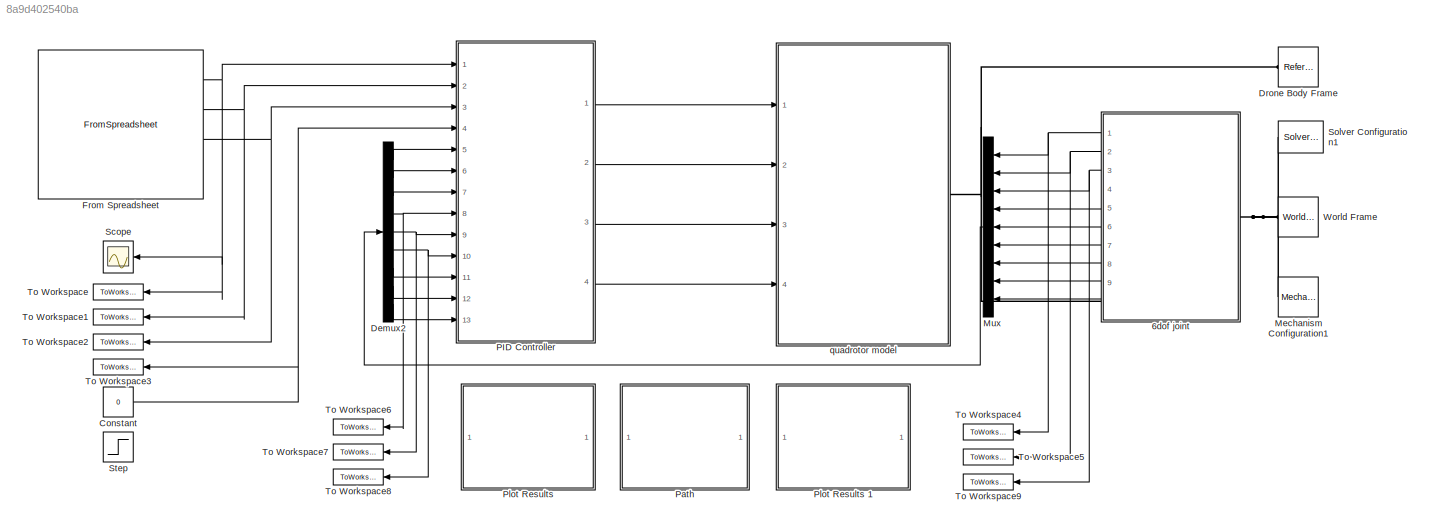
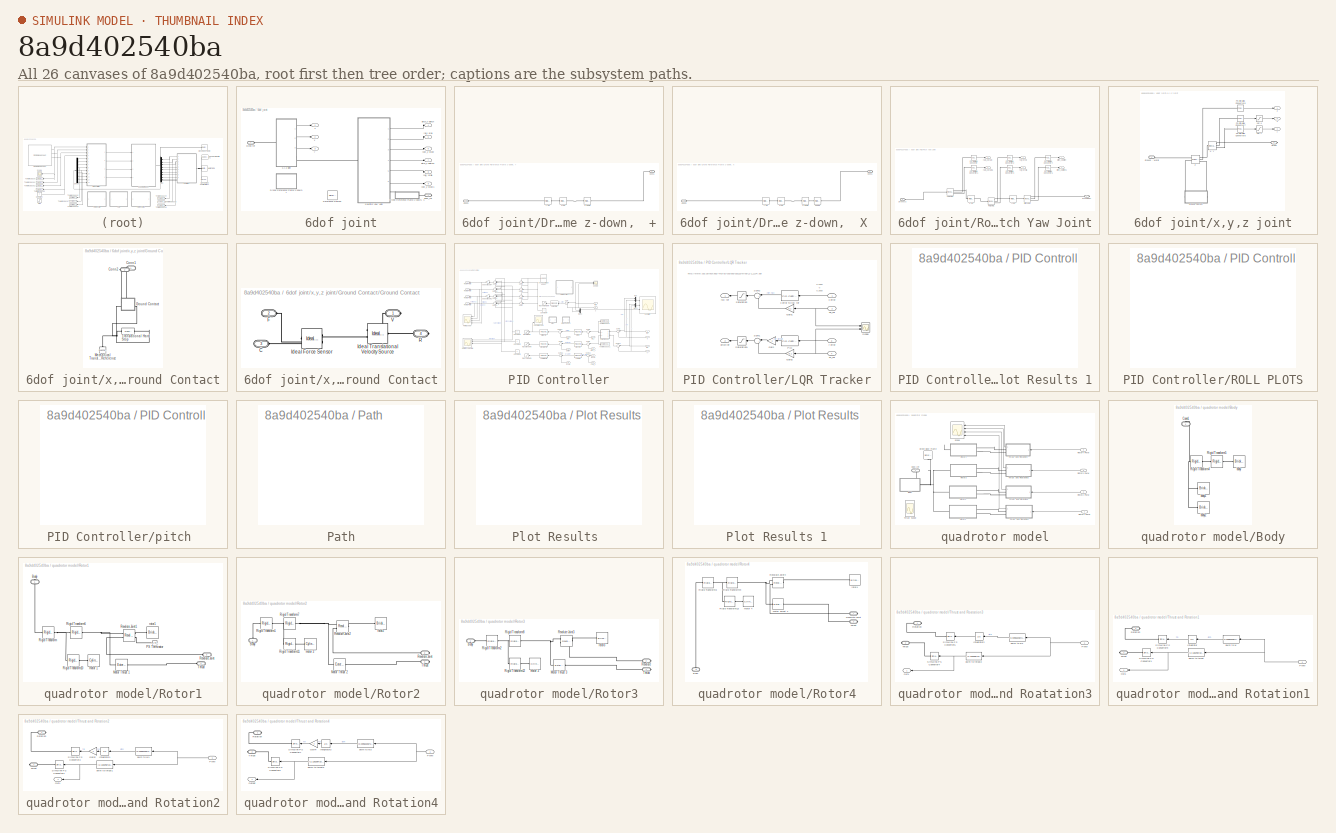
[diagram: thumbnail index - all 26 canvases of the model, root first then tree order]
MODEL slx_8a9d402540ba
KIND model
CONFIG AbsTol = auto
CONFIG EnableMultiTasking = off
CONFIG FixedStep = ts
CONFIG MaxStep = auto
CONFIG MinStep = auto
CONFIG RelTol = 1e-5
CONFIG SampleTimeConstraint = Unconstrained
CONFIG SolverName = VariableStepAuto
CONFIG StartTime = 0
CONFIG StopTime = 42
BLOCK [SubSystem] 6dof joint
  PortSchema = {"entries":[{"content":{"sides":[{"content":{"connectorIds":["LConn1"]},"type":"ConnectorPlacement.EquallySpacedRectSide","uuid":"c3ebf823-6fdb-40ee-9f72-8e83886cab13"},{"content":{"connectorIds":["RConn1","Out1","Out2","Out3","Out4","Out5","Out6","Out7","Out8","Out9"],"side":"RIGHT"},"type":"ConnectorPlacement.EquallySpacedRectSide","uuid":"d262be98-f7cf-4bbf-9c1f-e762be064cb2"},{"content":{"conn...<+308ch>
  Ports = [0, 9, 0, 0, 0, 1, 1]
  RequestExecContextInheritance = off
BLOCK [SubSystem] 6dof joint/Drone Reference Frame z-down,  +
  Commented = on
  Ports = [0, 0, 0, 0, 0, 1, 1]
  RequestExecContextInheritance = off
BLOCK [PMIOPort] 6dof joint/Drone Reference Frame z-down,  +/Conn1
  Side = Right
BLOCK [PMIOPort] 6dof joint/Drone Reference Frame z-down,  +/Conn2
  Port = 2
  Side = Left
BLOCK [Reference] 6dof joint/Drone Reference Frame z-down,  +/x +90  REF=sm_lib/Frames and
Transforms/Rigid
Transform
  Ports = [0, 0, 0, 0, 0, 1, 1]
  SourceBlock = sm_lib/Frames and\nTransforms/Rigid\nTransform
  SourceProductBaseCode = MS
  SourceType = Rigid\nTransform
BLOCK [Reference] 6dof joint/Drone Reference Frame z-down,  +/y -90  REF=sm_lib/Frames and
Transforms/Rigid
Transform
  Ports = [0, 0, 0, 0, 0, 1, 1]
  SourceBlock = sm_lib/Frames and\nTransforms/Rigid\nTransform
  SourceProductBaseCode = MS
  SourceType = Rigid\nTransform
BLOCK [Reference] 6dof joint/Drone Reference Frame z-down,  +/z-down  REF=sm_lib/Frames and
Transforms/Rigid
Transform
  Ports = [0, 0, 0, 0, 0, 1, 1]
  SourceBlock = sm_lib/Frames and\nTransforms/Rigid\nTransform
  SourceProductBaseCode = MS
  SourceType = Rigid\nTransform
BLOCK [SubSystem] 6dof joint/Drone Reference Frame z-down,  X 
  Ports = [0, 0, 0, 0, 0, 1, 1]
  RequestExecContextInheritance = off
BLOCK [Reference] 6dof joint/Drone Reference Frame z-down,  X /45deg  REF=sm_lib/Frames and
Transforms/Rigid
Transform
  Ports = [0, 0, 0, 0, 0, 1, 1]
  SourceBlock = sm_lib/Frames and\nTransforms/Rigid\nTransform
  SourceProductBaseCode = MS
  SourceType = Rigid\nTransform
BLOCK [PMIOPort] 6dof joint/Drone Reference Frame z-down,  X /Conn1
  Side = Right
BLOCK [PMIOPort] 6dof joint/Drone Reference Frame z-down,  X /Conn2
  Port = 2
  Side = Left
BLOCK [Reference] 6dof joint/Drone Reference Frame z-down,  X /x +90  REF=sm_lib/Frames and
Transforms/Rigid
Transform
  Ports = [0, 0, 0, 0, 0, 1, 1]
  SourceBlock = sm_lib/Frames and\nTransforms/Rigid\nTransform
  SourceProductBaseCode = MS
  SourceType = Rigid\nTransform
BLOCK [Reference] 6dof joint/Drone Reference Frame z-down,  X /y -90  REF=sm_lib/Frames and
Transforms/Rigid
Transform
  Ports = [0, 0, 0, 0, 0, 1, 1]
  SourceBlock = sm_lib/Frames and\nTransforms/Rigid\nTransform
  SourceProductBaseCode = MS
  SourceType = Rigid\nTransform
BLOCK [Reference] 6dof joint/Drone Reference Frame z-down,  X /z-down  REF=sm_lib/Frames and
Transforms/Rigid
Transform
  Ports = [0, 0, 0, 0, 0, 1, 1]
  SourceBlock = sm_lib/Frames and\nTransforms/Rigid\nTransform
  SourceProductBaseCode = MS
  SourceType = Rigid\nTransform
BLOCK [Reference] 6dof joint/Reference Frame3  REF=sm_lib/Frames and
Transforms/Reference
Frame
  Commented = on
  NameLocation = right
  Ports = [0, 0, 0, 0, 0, 0, 1]
  SourceBlock = sm_lib/Frames and\nTransforms/Reference\nFrame
  SourceProductBaseCode = MS
  SourceType = Reference\nFrame
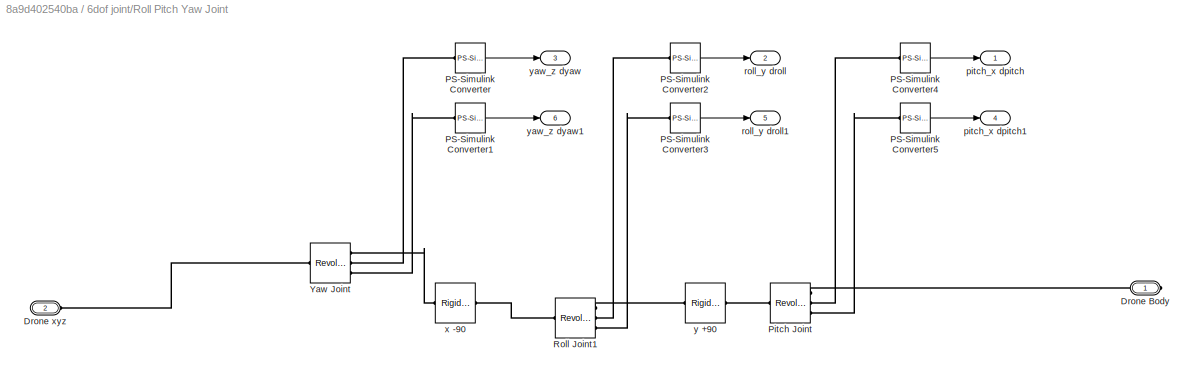
BLOCK [SubSystem] 6dof joint/Roll Pitch Yaw Joint
  Ports = [0, 6, 0, 0, 0, 1, 1]
  RequestExecContextInheritance = off
BLOCK [PMIOPort] 6dof joint/Roll Pitch Yaw Joint/Drone Body
  Side = Right
BLOCK [PMIOPort] 6dof joint/Roll Pitch Yaw Joint/Drone xyz
  Port = 2
  Side = Left
BLOCK [Reference] 6dof joint/Roll Pitch Yaw Joint/PS-Simulink Converter  REF=nesl_utility/PS-Simulink
Converter
  Ports = [0, 1, 0, 0, 0, 1]
  SourceBlock = nesl_utility/PS-Simulink\nConverter
  SourceProductBaseCode = PW,SS
  SourceType = PS-Simulink\nConverter
BLOCK [Reference] 6dof joint/Roll Pitch Yaw Joint/PS-Simulink Converter1  REF=nesl_utility/PS-Simulink
Converter
  Ports = [0, 1, 0, 0, 0, 1]
  SourceBlock = nesl_utility/PS-Simulink\nConverter
  SourceProductBaseCode = PW,SS
  SourceType = PS-Simulink\nConverter
BLOCK [Reference] 6dof joint/Roll Pitch Yaw Joint/PS-Simulink Converter2  REF=nesl_utility/PS-Simulink
Converter
  Ports = [0, 1, 0, 0, 0, 1]
  SourceBlock = nesl_utility/PS-Simulink\nConverter
  SourceProductBaseCode = PW,SS
  SourceType = PS-Simulink\nConverter
BLOCK [Reference] 6dof joint/Roll Pitch Yaw Joint/PS-Simulink Converter3  REF=nesl_utility/PS-Simulink
Converter
  Ports = [0, 1, 0, 0, 0, 1]
  SourceBlock = nesl_utility/PS-Simulink\nConverter
  SourceProductBaseCode = PW,SS
  SourceType = PS-Simulink\nConverter
BLOCK [Reference] 6dof joint/Roll Pitch Yaw Joint/PS-Simulink Converter4  REF=nesl_utility/PS-Simulink
Converter
  Ports = [0, 1, 0, 0, 0, 1]
  SourceBlock = nesl_utility/PS-Simulink\nConverter
  SourceProductBaseCode = PW,SS
  SourceType = PS-Simulink\nConverter
BLOCK [Reference] 6dof joint/Roll Pitch Yaw Joint/PS-Simulink Converter5  REF=nesl_utility/PS-Simulink
Converter
  Ports = [0, 1, 0, 0, 0, 1]
  SourceBlock = nesl_utility/PS-Simulink\nConverter
  SourceProductBaseCode = PW,SS
  SourceType = PS-Simulink\nConverter
BLOCK [Reference] 6dof joint/Roll Pitch Yaw Joint/Pitch Joint  REF=sm_lib/Joints/Revolute Joint
  Ports = [0, 0, 0, 0, 0, 1, 3]
  SourceBlock = sm_lib/Joints/Revolute Joint
  SourceProductBaseCode = MS
  SourceType = Revolute Joint
BLOCK [Reference] 6dof joint/Roll Pitch Yaw Joint/Roll Joint1  REF=sm_lib/Joints/Revolute Joint
  Ports = [0, 0, 0, 0, 0, 1, 3]
  SourceBlock = sm_lib/Joints/Revolute Joint
  SourceProductBaseCode = MS
  SourceType = Revolute Joint
BLOCK [Reference] 6dof joint/Roll Pitch Yaw Joint/Yaw Joint  REF=sm_lib/Joints/Revolute Joint
  Ports = [0, 0, 0, 0, 0, 1, 3]
  SourceBlock = sm_lib/Joints/Revolute Joint
  SourceProductBaseCode = MS
  SourceType = Revolute Joint
BLOCK [Outport] 6dof joint/Roll Pitch Yaw Joint/pitch_x dpitch
BLOCK [Outport] 6dof joint/Roll Pitch Yaw Joint/pitch_x dpitch1
  Port = 4
BLOCK [Outport] 6dof joint/Roll Pitch Yaw Joint/roll_y droll
  Port = 2
BLOCK [Outport] 6dof joint/Roll Pitch Yaw Joint/roll_y droll1
  Port = 5
BLOCK [Reference] 6dof joint/Roll Pitch Yaw Joint/x -90  REF=sm_lib/Frames and
Transforms/Rigid
Transform
  Ports = [0, 0, 0, 0, 0, 1, 1]
  SourceBlock = sm_lib/Frames and\nTransforms/Rigid\nTransform
  SourceProductBaseCode = MS
  SourceType = Rigid\nTransform
BLOCK [Reference] 6dof joint/Roll Pitch Yaw Joint/y +90  REF=sm_lib/Frames and
Transforms/Rigid
Transform
  Ports = [0, 0, 0, 0, 0, 1, 1]
  SourceBlock = sm_lib/Frames and\nTransforms/Rigid\nTransform
  SourceProductBaseCode = MS
  SourceType = Rigid\nTransform
BLOCK [Outport] 6dof joint/Roll Pitch Yaw Joint/yaw_z dyaw
  Port = 3
BLOCK [Outport] 6dof joint/Roll Pitch Yaw Joint/yaw_z dyaw1
  Port = 6
BLOCK [PMIOPort] 6dof joint/body_ref
  Port = 2
  Side = Right
BLOCK [Outport] 6dof joint/pitch_x dpitch
  Port = 4
BLOCK [Outport] 6dof joint/pitch_x dpitch1
  Port = 7
BLOCK [Outport] 6dof joint/roll_y droll
  Port = 5
BLOCK [Outport] 6dof joint/roll_y droll1
  Port = 8
BLOCK [PMIOPort] 6dof joint/world ref
  Side = Left
BLOCK [Outport] 6dof joint/x
  Port = 2
BLOCK [SubSystem] 6dof joint/x,y,z joint
  Ports = [0, 3, 0, 0, 0, 1, 1]
  RequestExecContextInheritance = off
BLOCK [PMIOPort] 6dof joint/x,y,z joint/Drone
  Side = Right
BLOCK [PMIOPort] 6dof joint/x,y,z joint/Ground - World
  Port = 2
  Side = Left
BLOCK [SubSystem] 6dof joint/x,y,z joint/Ground Contact
  Ports = [0, 0, 0, 0, 0, 1, 1]
  RequestExecContextInheritance = off
BLOCK [PMIOPort] 6dof joint/x,y,z joint/Ground Contact/Conn1
  Side = Left
BLOCK [PMIOPort] 6dof joint/x,y,z joint/Ground Contact/Conn2
  Port = 2
  Side = Right
BLOCK [SubSystem] 6dof joint/x,y,z joint/Ground Contact/Ground Contact
  Ports = [0, 0, 0, 0, 0, 2, 2]
  RequestExecContextInheritance = off
BLOCK [PMIOPort] 6dof joint/x,y,z joint/Ground Contact/Ground Contact/C
  Port = 3
  Side = Left
BLOCK [PMIOPort] 6dof joint/x,y,z joint/Ground Contact/Ground Contact/F
  NameLocation = top
  Port = 2
  Side = Left
BLOCK [Reference] 6dof joint/x,y,z joint/Ground Contact/Ground Contact/Ideal Force Sensor  REF=fl_lib/Mechanical/Mechanical Sensors/Ideal Force Sensor
  Ports = [0, 0, 0, 0, 0, 1, 2]
  SourceBlock = fl_lib/Mechanical/Mechanical Sensors/Ideal Force Sensor
  SourceProductBaseCode = SS
  SourceType = Ideal Force Sensor
BLOCK [Reference] 6dof joint/x,y,z joint/Ground Contact/Ground Contact/Ideal Translational Velocity Source  REF=fl_lib/Mechanical/Mechanical Sources/Ideal Translational
Velocity Source
  Ports = [0, 0, 0, 0, 0, 1, 2]
  SourceBlock = fl_lib/Mechanical/Mechanical Sources/Ideal Translational\nVelocity Source
  SourceProductBaseCode = SS
  SourceType = Ideal Translational\nVelocity Source
BLOCK [PMIOPort] 6dof joint/x,y,z joint/Ground Contact/Ground Contact/R
  Port = 4
  Side = Right
BLOCK [PMIOPort] 6dof joint/x,y,z joint/Ground Contact/Ground Contact/V
  NameLocation = top
  Side = Right
BLOCK [Reference] 6dof joint/x,y,z joint/Ground Contact/Mechanical Translational Reference  REF=fl_lib/Mechanical/Translational
Elements/Mechanical
Translational
Reference
  NameLocation = right
  Ports = [0, 0, 0, 0, 0, 1]
  SourceBlock = fl_lib/Mechanical/Translational\nElements/Mechanical\nTranslational\nReference
  SourceProductBaseCode = SS
  SourceType = Mechanical\nTranslational\nReference
BLOCK [Reference] 6dof joint/x,y,z joint/Ground Contact/Translational Hard Stop  REF=fl_lib/Mechanical/Translational
Elements/Translational Hard
Stop
  Ports = [0, 0, 0, 0, 0, 1, 1]
  SourceBlock = fl_lib/Mechanical/Translational\nElements/Translational Hard\nStop
  SourceProductBaseCode = SS
  SourceType = Translational Hard\nStop
BLOCK [Reference] 6dof joint/x,y,z joint/PS-Simulink Converter6  REF=nesl_utility/PS-Simulink
Converter
  Ports = [0, 1, 0, 0, 0, 1]
  SourceBlock = nesl_utility/PS-Simulink\nConverter
  SourceProductBaseCode = PW,SS
  SourceType = PS-Simulink\nConverter
BLOCK [Reference] 6dof joint/x,y,z joint/PS-Simulink Converter7  REF=nesl_utility/PS-Simulink
Converter
  Ports = [0, 1, 0, 0, 0, 1]
  SourceBlock = nesl_utility/PS-Simulink\nConverter
  SourceProductBaseCode = PW,SS
  SourceType = PS-Simulink\nConverter
BLOCK [Reference] 6dof joint/x,y,z joint/PS-Simulink Converter8  REF=nesl_utility/PS-Simulink
Converter
  Ports = [0, 1, 0, 0, 0, 1]
  SourceBlock = nesl_utility/PS-Simulink\nConverter
  SourceProductBaseCode = PW,SS
  SourceType = PS-Simulink\nConverter
BLOCK [Reference] 6dof joint/x,y,z joint/X, Y  REF=sm_lib/Joints/Rectangular
Joint
  Ports = [0, 0, 0, 0, 0, 1, 3]
  SourceBlock = sm_lib/Joints/Rectangular\nJoint
  SourceProductBaseCode = MS
  SourceType = Rectangular\nJoint
BLOCK [Reference] 6dof joint/x,y,z joint/Z  REF=sm_lib/Joints/Prismatic
Joint
  Ports = [0, 0, 0, 0, 0, 2, 3]
  SourceBlock = sm_lib/Joints/Prismatic\nJoint
  SourceProductBaseCode = MS
  SourceType = Prismatic\nJoint
BLOCK [Saturate] 6dof joint/x,y,z joint/sat-x
  Commented = through
  LowerLimit = -4.7e-14
  NameLocation = top
  UpperLimit = 4.7e-14
BLOCK [Saturate] 6dof joint/x,y,z joint/sat-y
  Commented = through
  LowerLimit = -4.7e-14
  NameLocation = top
  UpperLimit = 4.7e-14
BLOCK [Outport] 6dof joint/x,y,z joint/x
  Port = 2
BLOCK [Outport] 6dof joint/x,y,z joint/y
  Port = 3
BLOCK [Outport] 6dof joint/x,y,z joint/z
BLOCK [Outport] 6dof joint/y
  Port = 3
BLOCK [Outport] 6dof joint/yaw_z dyaw
  Port = 6
BLOCK [Outport] 6dof joint/yaw_z dyaw1
  Port = 9
BLOCK [Outport] 6dof joint/z
BLOCK [Constant] Constant
  SampleTime = -1
  Value = 0
BLOCK [Demux] Demux2
  NameLocation = top
  Outputs = 9
  Ports = [1, 9]
BLOCK [Reference] Drone Body Frame  REF=sm_lib/Frames and
Transforms/Reference
Frame
  Ports = [0, 0, 0, 0, 0, 0, 1]
  SourceBlock = sm_lib/Frames and\nTransforms/Reference\nFrame
  SourceProductBaseCode = MS
  SourceType = Reference\nFrame
BLOCK [FromSpreadsheet] From Spreadsheet
  FileName = desired_path.xlsx
  NameLocation = top
  Ports = [0, 4]
  SheetName = Sheet 1
BLOCK [Reference] Mechanism Configuration1  REF=sm_lib/Utilities/Mechanism
Configuration
  Ports = [0, 0, 0, 0, 0, 0, 1]
  SourceBlock = sm_lib/Utilities/Mechanism\nConfiguration
  SourceProductBaseCode = MS
  SourceType = Mechanism\nConfiguration
BLOCK [Mux] Mux
  DisplayOption = bar
  Inputs = 9
  Ports = [9, 1]
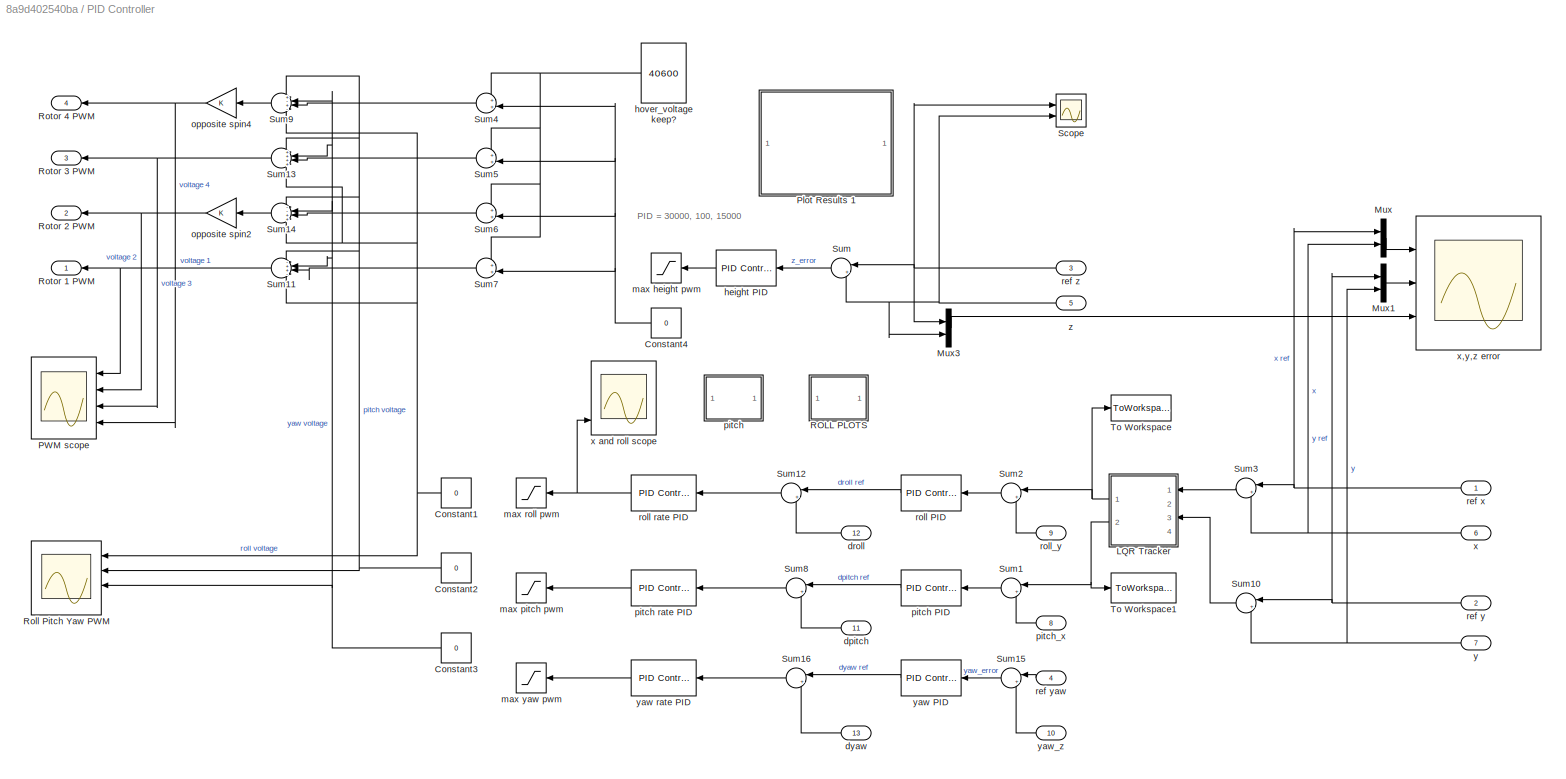
BLOCK [SubSystem] PID Controller
  Ports = [13, 4]
  RequestExecContextInheritance = off
BLOCK [Constant] PID Controller/Constant1
  NameLocation = top
  SampleTime = -1
  Value = 0
BLOCK [Constant] PID Controller/Constant2
  NameLocation = top
  SampleTime = -1
  Value = 0
BLOCK [Constant] PID Controller/Constant3
  NameLocation = top
  SampleTime = -1
  Value = 0
BLOCK [Constant] PID Controller/Constant4
  NameLocation = top
  SampleTime = -1
  Value = 0
BLOCK [SubSystem] PID Controller/LQR Tracker
  NameLocation = top
  Ports = [4, 2]
  RequestExecContextInheritance = off
BLOCK [Gain] PID Controller/LQR Tracker/Gain
  Gain = -1
  NameLocation = top
BLOCK [Gain] PID Controller/LQR Tracker/Gain1
  Gain = 0.1
  NameLocation = top
BLOCK [Gain] PID Controller/LQR Tracker/Gain2
  Gain = -0.1
  NameLocation = top
BLOCK [Reference] PID Controller/LQR Tracker/PID  REF=slpidlib/PID Controller
  NameLocation = top
  Ports = [1, 1]
  SourceBlock = slpidlib/PID Controller
  SourceProductBaseCode = SL
  SourceType = PID 1dof
BLOCK [Saturate] PID Controller/LQR Tracker/Saturation
  LowerLimit = -20*pi/180
  NameLocation = top
  UpperLimit = 20*pi/180
BLOCK [Saturate] PID Controller/LQR Tracker/Saturation1
  LowerLimit = -20*pi/180
  NameLocation = top
  UpperLimit = 20*pi/180
BLOCK [Scope] PID Controller/LQR Tracker/Scope
  Floating = off
  NumInputPorts = 2
  Ports = [2]
  ScopeSpecificationString = Simulink.scopes.TimeScopeBlockCfg('CurrentConfiguration', extmgr.ConfigurationSet(extmgr.Configuration('Core','General UI',true),extmgr.Configuration('Core','Source UI',true),extmgr.Configuration('Sources','WiredSimulink',true,'DataLoggingVariableName','ScopeData1'),extmgr.Configuration('Visuals','Time Domain',true,'SerializedDisplays',{struct('MinYLimReal','-0.07813','MaxYLimReal','0.70313','YLab...<+2041ch>
BLOCK [Sum] PID Controller/LQR Tracker/Sum1
  Inputs = |++
  NameLocation = top
  Ports = [2, 1]
BLOCK [Sum] PID Controller/LQR Tracker/Sum2
  Inputs = |++
  NameLocation = top
  Ports = [2, 1]
BLOCK [Inport] PID Controller/LQR Tracker/dx_ref
  NameLocation = top
  Port = 2
BLOCK [Inport] PID Controller/LQR Tracker/dy_ref
  Port = 4
BLOCK [Outport] PID Controller/LQR Tracker/pitch ref
  Port = 2
BLOCK [Outport] PID Controller/LQR Tracker/roll ref
BLOCK [Inport] PID Controller/LQR Tracker/x error
BLOCK [Reference] PID Controller/LQR Tracker/x error to roll ref  REF=slpidlib/PID Controller
  NameLocation = top
  Ports = [1, 1]
  SourceBlock = slpidlib/PID Controller
  SourceProductBaseCode = SL
  SourceType = PID 1dof
BLOCK [Inport] PID Controller/LQR Tracker/y error
  Port = 3
BLOCK [Mux] PID Controller/Mux
  DisplayOption = bar
  Inputs = 2
  Ports = [2, 1]
BLOCK [Mux] PID Controller/Mux1
  DisplayOption = bar
  Inputs = 2
  Ports = [2, 1]
BLOCK [Mux] PID Controller/Mux3
  DisplayOption = bar
  Inputs = 2
  Ports = [2, 1]
BLOCK [Scope] PID Controller/PWM scope
  Floating = off
  NumInputPorts = 4
  Ports = [4]
  ScopeSpecificationString = Simulink.scopes.TimeScopeBlockCfg('CurrentConfiguration', extmgr.ConfigurationSet(extmgr.Configuration('Core','General UI',true),extmgr.Configuration('Core','Source UI',true),extmgr.Configuration('Sources','WiredSimulink',true,'DataLoggingVariableName','ScopeData1'),extmgr.Configuration('Visuals','Time Domain',true,'SerializedDisplays',{struct('MinYLimReal','30600.00000','MaxYLimReal','50600.00000...<+2017ch>
BLOCK [SubSystem] PID Controller/Plot Results 1
  OpenFcn = figure(1)\ntiledlayout(3,3)\nnexttile\nplot(x_ref.Time,x_ref.Data,'r')\nhold on \nplot(xo.Time,xo.Data,'b')\nhold off\nlegend('X Ref','X Out');\n\nnexttile\nplot(y_ref.Time,y_ref.Data,'r')\nhold on \nplot(yo.Time,yo.Data,'b')\nhold off\nlegend('y Ref','y Out');\n\nnexttile\nplot(z_ref.Time,z_ref.Data,'r')\nhold on \nplot(zo.Time,zo.Data,'b')\nhold off\nlegend('z Ref','z Out');\n\nnexttile\nplot(roll_ref.Time,roll_ref.Dat...<+615ch>
  Ports = []
  RequestExecContextInheritance = off
BLOCK [SubSystem] PID Controller/ROLL PLOTS
  OpenFcn = figure('Name','Roll Out Vs Ref ','NumberTitle','off');\nplot(roll_ref.Data,'Color','b')\nhold on \nplot(roll_y.Data,'Color','r')
  Ports = []
  RequestExecContextInheritance = off
BLOCK [Scope] PID Controller/Roll Pitch Yaw PWM
  Floating = off
  NameLocation = top
  NumInputPorts = 4
  Ports = [4]
  ScopeSpecificationString = Simulink.scopes.TimeScopeBlockCfg('CurrentConfiguration', extmgr.ConfigurationSet(extmgr.Configuration('Core','General UI',true),extmgr.Configuration('Core','Source UI',true),extmgr.Configuration('Sources','WiredSimulink',true,'DataLoggingVariableName','ScopeData1'),extmgr.Configuration('Visuals','Time Domain',true,'SerializedDisplays',{struct('MinYLimReal','-81918.75','MaxYLimReal','81918.75','YL...<+3692ch>
BLOCK [Outport] PID Controller/Rotor 1 PWM
BLOCK [Outport] PID Controller/Rotor 2 PWM
  Port = 2
BLOCK [Outport] PID Controller/Rotor 3 PWM
  Port = 3
BLOCK [Outport] PID Controller/Rotor 4 PWM
  Port = 4
BLOCK [Scope] PID Controller/Scope
  Floating = off
  NumInputPorts = 2
  Ports = [2]
  ScopeSpecificationString = Simulink.scopes.TimeScopeBlockCfg('CurrentConfiguration', extmgr.ConfigurationSet(extmgr.Configuration('Core','General UI',true),extmgr.Configuration('Core','Source UI',true),extmgr.Configuration('Sources','WiredSimulink',true,'DataLoggingVariableName','ScopeData2'),extmgr.Configuration('Visuals','Time Domain',true,'SerializedDisplays',{struct('MinYLimReal','-0.12375','MaxYLimReal','1.11375','YLab...<+1399ch>
BLOCK [Sum] PID Controller/Sum
  Inputs = |+-
  NameLocation = top
  Ports = [2, 1]
BLOCK [Sum] PID Controller/Sum1
  Inputs = |+-
  NameLocation = top
  Ports = [2, 1]
BLOCK [Sum] PID Controller/Sum10
  Inputs = |+-
  NameLocation = top
  Ports = [2, 1]
BLOCK [Sum] PID Controller/Sum11
  Inputs = -++-
  NameLocation = top
  Ports = [4, 1]
BLOCK [Sum] PID Controller/Sum12
  Inputs = |+-
  NameLocation = top
  Ports = [2, 1]
BLOCK [Sum] PID Controller/Sum13
  Inputs = ++++
  NameLocation = top
  Ports = [4, 1]
BLOCK [Sum] PID Controller/Sum14
  Inputs = --++
  NameLocation = top
  Ports = [4, 1]
BLOCK [Sum] PID Controller/Sum15
  Inputs = |+-
  NameLocation = top
  Ports = [2, 1]
BLOCK [Sum] PID Controller/Sum16
  Inputs = |+-
  NameLocation = top
  Ports = [2, 1]
BLOCK [Sum] PID Controller/Sum2
  Inputs = |+-
  NameLocation = top
  Ports = [2, 1]
BLOCK [Sum] PID Controller/Sum3
  Inputs = |+-
  NameLocation = top
  Ports = [2, 1]
BLOCK [Sum] PID Controller/Sum4
  Inputs = ++|
  NameLocation = top
  Ports = [2, 1]
BLOCK [Sum] PID Controller/Sum5
  Inputs = ++|
  NameLocation = top
  Ports = [2, 1]
BLOCK [Sum] PID Controller/Sum6
  Inputs = ++|
  NameLocation = top
  Ports = [2, 1]
BLOCK [Sum] PID Controller/Sum7
  Inputs = ++|
  NameLocation = top
  Ports = [2, 1]
BLOCK [Sum] PID Controller/Sum8
  Inputs = |+-
  NameLocation = top
  Ports = [2, 1]
BLOCK [Sum] PID Controller/Sum9
  Inputs = +-+-
  NameLocation = top
  Ports = [4, 1]
BLOCK [ToWorkspace] PID Controller/To Workspace
  FixptAsFi = on
  MaxDataPoints = inf
  Ports = [1]
  SampleTime = -1
  SaveFormat = Timeseries
  VariableName = roll_ref
BLOCK [ToWorkspace] PID Controller/To Workspace1
  FixptAsFi = on
  MaxDataPoints = inf
  Ports = [1]
  SampleTime = -1
  SaveFormat = Timeseries
  VariableName = pitch_ref
BLOCK [Inport] PID Controller/dpitch
  Port = 11
BLOCK [Inport] PID Controller/droll
  Port = 12
BLOCK [Inport] PID Controller/dyaw
  Port = 13
BLOCK [Reference] PID Controller/height PID  REF=slpidlib/PID Controller
  NameLocation = top
  Ports = [1, 1]
  SourceBlock = slpidlib/PID Controller
  SourceProductBaseCode = SL
  SourceType = PID 1dof
BLOCK [Constant] PID Controller/hover_voltage keep?
  Value = 40600
BLOCK [Saturate] PID Controller/max height pwm
  LowerLimit = -9000
  NameLocation = top
  UpperLimit = 9000
  ZeroCross = off
BLOCK [Saturate] PID Controller/max pitch pwm
  LowerLimit = -10000
  NameLocation = top
  UpperLimit = 10000
  ZeroCross = off
BLOCK [Saturate] PID Controller/max roll pwm
  LowerLimit = -10000
  NameLocation = top
  UpperLimit = 10000
  ZeroCross = off
BLOCK [Saturate] PID Controller/max yaw pwm
  LowerLimit = -10000
  UpperLimit = 10000
  ZeroCross = off
BLOCK [Gain] PID Controller/opposite spin2
  NameLocation = top
BLOCK [Gain] PID Controller/opposite spin4
  NameLocation = top
BLOCK [SubSystem] PID Controller/pitch 
  OpenFcn = figure('Name','Pitch Out Vs Ref ','NumberTitle','off');\nplot(pitch_ref.Data,'Color','b')\nhold on \nplot(pitch_x.Data,'Color','r')
  Ports = []
  RequestExecContextInheritance = off
BLOCK [Reference] PID Controller/pitch PID  REF=slpidlib/PID Controller
  NameLocation = top
  Ports = [1, 1]
  SourceBlock = slpidlib/PID Controller
  SourceProductBaseCode = SL
  SourceType = PID 1dof
BLOCK [Reference] PID Controller/pitch rate PID  REF=slpidlib/PID Controller
  NameLocation = top
  Ports = [1, 1]
  SourceBlock = slpidlib/PID Controller
  SourceProductBaseCode = SL
  SourceType = PID 1dof
BLOCK [Inport] PID Controller/pitch_x
  Port = 8
BLOCK [Inport] PID Controller/ref x
BLOCK [Inport] PID Controller/ref y
  Port = 2
BLOCK [Inport] PID Controller/ref yaw
  Port = 4
BLOCK [Inport] PID Controller/ref z
  Port = 3
BLOCK [Reference] PID Controller/roll PID  REF=slpidlib/PID Controller
  NameLocation = top
  Ports = [1, 1]
  SourceBlock = slpidlib/PID Controller
  SourceProductBaseCode = SL
  SourceType = PID 1dof
BLOCK [Reference] PID Controller/roll rate PID  REF=slpidlib/PID Controller
  NameLocation = top
  Ports = [1, 1]
  SourceBlock = slpidlib/PID Controller
  SourceProductBaseCode = SL
  SourceType = PID 1dof
BLOCK [Inport] PID Controller/roll_y
  Port = 9
BLOCK [Inport] PID Controller/x
  Port = 6
BLOCK [Scope] PID Controller/x and roll scope 
  Floating = off
  NumInputPorts = 4
  Ports = [4]
  ScopeSpecificationString = Simulink.scopes.TimeScopeBlockCfg('CurrentConfiguration', extmgr.ConfigurationSet(extmgr.Configuration('Core','General UI',true),extmgr.Configuration('Core','Source UI',true),extmgr.Configuration('Sources','WiredSimulink',true,'DataLoggingVariableName','ScopeData3'),extmgr.Configuration('Visuals','Time Domain',true,'SerializedDisplays',{struct('MinYLimReal','-11.1433','MaxYLimReal','1.32628','YLab...<+3638ch>
BLOCK [Scope] PID Controller/x,y,z error
  Floating = off
  NumInputPorts = 3
  Ports = [3]
  ScopeSpecificationString = Simulink.scopes.TimeScopeBlockCfg('CurrentConfiguration', extmgr.ConfigurationSet(extmgr.Configuration('Core','General UI',true,'FigureColor',[1 1 1]),extmgr.Configuration('Core','Source UI',true),extmgr.Configuration('Sources','WiredSimulink',true,'DataLoggingVariableName','ScopeData2'),extmgr.Configuration('Visuals','Time Domain',true,'SerializedDisplays',{struct('MinYLimReal','-0.13055','MaxYLi...<+3605ch>
BLOCK [Inport] PID Controller/y
  Port = 7
BLOCK [Reference] PID Controller/yaw PID  REF=slpidlib/PID Controller
  NameLocation = top
  Ports = [1, 1]
  SourceBlock = slpidlib/PID Controller
  SourceProductBaseCode = SL
  SourceType = PID 1dof
BLOCK [Reference] PID Controller/yaw rate PID  REF=slpidlib/PID Controller
  NameLocation = top
  Ports = [1, 1]
  SourceBlock = slpidlib/PID Controller
  SourceProductBaseCode = SL
  SourceType = PID 1dof
BLOCK [Inport] PID Controller/yaw_z
  Port = 10
BLOCK [Inport] PID Controller/z
  Port = 5
BLOCK [SubSystem] Path
  OpenFcn = figure(5)\ntiledlayout(2,2)\n\nnexttile\nplot3(x_ref.Data,y_ref.Data,z_ref.Data,'Color','b')\ntitle('Desired Path'); \n\nnexttile\nplot3(xo.Data,yo.Data,zo.Data,'Color','r')\nxlim([-2 2])\nylim([-2 2])\ntitle('Output Path'); \n\n\nnexttile\nplot(circle_cf(:,2),circle_cf(:,3),'Color','b')\ntitle('output from CF '); \n\nnexttile\n%plot(pitch_x.Data,roll_y.Data,'Color','r')\nplot(xo.Data,yo.Data,'Color','r')\ntitle('Outp...<+16ch>
  Ports = []
  RequestExecContextInheritance = off
BLOCK [SubSystem] Plot Results 
  OpenFcn = figure(1)\ntiledlayout(3,2)\nnexttile\nplot(x_ref.Data,'r')\nhold on \nplot(xo.Data,'b')\nhold off\nlegend('X Ref','X Out');\n\nnexttile\nplot(pitch_ref.Data,'r')\nhold on \nplot(pitch_x.Data,'b')\nhold off\nlegend('pitch Ref','pitch Out');\n\nnexttile\nplot(y_ref.Data,'r')\nhold on \nplot(yo.Data,'b')\nhold off\nlegend('y Ref','y Out');\n\nnexttile\nplot(roll_ref.Data,'r')\nhold on \nplot(roll_y.Data,'b')\nhold off\nlegend(...<+216ch>
  Ports = []
  RequestExecContextInheritance = off
BLOCK [SubSystem] Plot Results 1
  OpenFcn = figure(1)\ntiledlayout(3,3)\nnexttile\nplot(x_ref.Time,x_ref.Data,'r')\nhold on \nplot(xo.Time,xo.Data,'b')\nhold off\nlegend('X Ref','X Out');\n\nnexttile\nplot(y_ref.Time,y_ref.Data,'r')\nhold on \nplot(yo.Time,yo.Data,'b')\nhold off\nlegend('y Ref','y Out');\n\nnexttile\nplot(z_ref.Time,z_ref.Data,'r')\nhold on \nplot(zo.Time,zo.Data,'b')\nhold off\nlegend('z Ref','z Out');\n\nnexttile\nplot(roll_ref.Time,roll_ref.Dat...<+615ch>
  Ports = []
  RequestExecContextInheritance = off
BLOCK [Scope] Scope
  Floating = off
  NumInputPorts = 1
  Ports = [1]
  ScopeSpecificationString = Simulink.scopes.TimeScopeBlockCfg('CurrentConfiguration', extmgr.ConfigurationSet(extmgr.Configuration('Core','General UI',true),extmgr.Configuration('Core','Source UI',true),extmgr.Configuration('Sources','WiredSimulink',true,'DataLoggingVariableName','ScopeData1'),extmgr.Configuration('Visuals','Time Domain',true,'SerializedDisplays',{struct('MinYLimReal','-1.00000','MaxYLimReal','1.00000','YLab...<+1432ch>
BLOCK [Reference] Solver Configuration1  REF=nesl_utility/Solver
Configuration
  Ports = [0, 0, 0, 0, 0, 0, 1]
  SourceBlock = nesl_utility/Solver\nConfiguration
  SourceProductBaseCode = PW,SS
  SourceType = Solver\nConfiguration
BLOCK [Step] Step
  After = -11
  SampleTime = 0
  Time = 6
BLOCK [ToWorkspace] To Workspace
  FixptAsFi = on
  MaxDataPoints = inf
  Ports = [1]
  SampleTime = -1
  SaveFormat = Timeseries
  VariableName = x_ref
BLOCK [ToWorkspace] To Workspace1
  FixptAsFi = on
  MaxDataPoints = inf
  Ports = [1]
  SampleTime = -1
  SaveFormat = Timeseries
  VariableName = y_ref
BLOCK [ToWorkspace] To Workspace2
  FixptAsFi = on
  MaxDataPoints = inf
  Ports = [1]
  SampleTime = -1
  SaveFormat = Timeseries
  VariableName = z_ref
BLOCK [ToWorkspace] To Workspace3
  FixptAsFi = on
  MaxDataPoints = inf
  Ports = [1]
  SampleTime = -1
  SaveFormat = Timeseries
  VariableName = yaw_ref
BLOCK [ToWorkspace] To Workspace4
  FixptAsFi = on
  MaxDataPoints = inf
  Ports = [1]
  SampleTime = -1
  SaveFormat = Timeseries
  VariableName = zo
BLOCK [ToWorkspace] To Workspace5
  FixptAsFi = on
  MaxDataPoints = inf
  Ports = [1]
  SampleTime = -1
  SaveFormat = Timeseries
  VariableName = xo
BLOCK [ToWorkspace] To Workspace6
  FixptAsFi = on
  MaxDataPoints = inf
  Ports = [1]
  SampleTime = -1
  SaveFormat = Timeseries
  VariableName = pitch_x
BLOCK [ToWorkspace] To Workspace7
  FixptAsFi = on
  MaxDataPoints = inf
  Ports = [1]
  SampleTime = -1
  SaveFormat = Timeseries
  VariableName = roll_y
BLOCK [ToWorkspace] To Workspace8
  FixptAsFi = on
  MaxDataPoints = inf
  Ports = [1]
  SampleTime = -1
  SaveFormat = Timeseries
  VariableName = yaw_z
BLOCK [ToWorkspace] To Workspace9
  FixptAsFi = on
  MaxDataPoints = inf
  Ports = [1]
  SampleTime = -1
  SaveFormat = Timeseries
  VariableName = yo
BLOCK [Reference] World Frame  REF=sm_lib/Frames and
Transforms/World Frame
  Ports = [0, 0, 0, 0, 0, 0, 1]
  SourceBlock = sm_lib/Frames and\nTransforms/World Frame
  SourceProductBaseCode = MS
  SourceType = World Frame
BLOCK [SubSystem] quadrotor model
  Ports = [4, 0, 0, 0, 0, 0, 1]
  RequestExecContextInheritance = off
BLOCK [SubSystem] quadrotor model/Body
  Ports = [0, 0, 0, 0, 0, 0, 1]
  RequestExecContextInheritance = off
BLOCK [PMIOPort] quadrotor model/Body/Conn1
  NameLocation = right
  Side = Right
BLOCK [Reference] quadrotor model/Body/Rigid Transform4  REF=sm_lib/Frames and
Transforms/Rigid
Transform
  Ports = [0, 0, 0, 0, 0, 1, 1]
  SourceBlock = sm_lib/Frames and\nTransforms/Rigid\nTransform
  SourceProductBaseCode = MS
  SourceType = Rigid\nTransform
BLOCK [Reference] quadrotor model/Body/Rigid Transform5  REF=sm_lib/Frames and
Transforms/Rigid
Transform
  Ports = [0, 0, 0, 0, 0, 1, 1]
  SourceBlock = sm_lib/Frames and\nTransforms/Rigid\nTransform
  SourceProductBaseCode = MS
  SourceType = Rigid\nTransform
BLOCK [Reference] quadrotor model/Body/body  REF=sm_lib/Body Elements/Brick Solid
  NameLocation = top
  Ports = [0, 0, 0, 0, 0, 0, 1]
  SourceBlock = sm_lib/Body Elements/Brick Solid
  SourceProductBaseCode = MS
  SourceType = Brick Solid
BLOCK [Reference] quadrotor model/Body/body1  REF=sm_lib/Body Elements/Brick Solid
  NameLocation = top
  Ports = [0, 0, 0, 0, 0, 0, 1]
  SourceBlock = sm_lib/Body Elements/Brick Solid
  SourceProductBaseCode = MS
  SourceType = Brick Solid
BLOCK [Reference] quadrotor model/Body/body2  REF=sm_lib/Body Elements/Brick Solid
  NameLocation = top
  Ports = [0, 0, 0, 0, 0, 0, 1]
  SourceBlock = sm_lib/Body Elements/Brick Solid
  SourceProductBaseCode = MS
  SourceType = Brick Solid
BLOCK [Reference] quadrotor model/Drone Body Frame  REF=sm_lib/Frames and
Transforms/Reference
Frame
  NameLocation = left
  Ports = [0, 0, 0, 0, 0, 0, 1]
  SourceBlock = sm_lib/Frames and\nTransforms/Reference\nFrame
  SourceProductBaseCode = MS
  SourceType = Reference\nFrame
BLOCK [SubSystem] quadrotor model/Rotor1
  NameLocation = top
  Ports = [0, 0, 0, 0, 0, 2, 1]
  RequestExecContextInheritance = off
BLOCK [Inport] quadrotor model/Rotor1 PWM
BLOCK [Reference] quadrotor model/Rotor1/  Motor Thrust 1  REF=sm_lib/Forces and
Torques/External Force
and Torque
  NameLocation = top
  Ports = [0, 0, 0, 0, 0, 1, 1]
  SourceBlock = sm_lib/Forces and\nTorques/External Force\nand Torque
  SourceProductBaseCode = MS
  SourceType = External Force\nand Torque
BLOCK [PMIOPort] quadrotor model/Rotor1/Body
  NameLocation = right
  Side = Right
BLOCK [Reference] quadrotor model/Rotor1/PS Terminator  REF=fl_lib/Physical Signals/Sinks/PS Terminator
  Ports = [0, 0, 0, 0, 0, 1]
  SourceBlock = fl_lib/Physical Signals/Sinks/PS Terminator
  SourceProductBaseCode = SS
  SourceType = PS Terminator
BLOCK [PMIOPort] quadrotor model/Rotor1/Revolute Joint
  Port = 2
  Side = Left
BLOCK [Reference] quadrotor model/Rotor1/Revolute Joint1  REF=sm_lib/Joints/Revolute Joint
  Ports = [0, 0, 0, 0, 0, 2, 2]
  SourceBlock = sm_lib/Joints/Revolute Joint
  SourceProductBaseCode = MS
  SourceType = Revolute Joint
BLOCK [Reference] quadrotor model/Rotor1/Rigid Transform  REF=sm_lib/Frames and
Transforms/Rigid
Transform
  Ports = [0, 0, 0, 0, 0, 1, 1]
  SourceBlock = sm_lib/Frames and\nTransforms/Rigid\nTransform
  SourceProductBaseCode = MS
  SourceType = Rigid\nTransform
BLOCK [Reference] quadrotor model/Rotor1/Rigid Transform10  REF=sm_lib/Frames and
Transforms/Rigid
Transform
  Ports = [0, 0, 0, 0, 0, 1, 1]
  SourceBlock = sm_lib/Frames and\nTransforms/Rigid\nTransform
  SourceProductBaseCode = MS
  SourceType = Rigid\nTransform
BLOCK [Reference] quadrotor model/Rotor1/Rigid Transform6  REF=sm_lib/Frames and
Transforms/Rigid
Transform
  Ports = [0, 0, 0, 0, 0, 1, 1]
  SourceBlock = sm_lib/Frames and\nTransforms/Rigid\nTransform
  SourceProductBaseCode = MS
  SourceType = Rigid\nTransform
BLOCK [PMIOPort] quadrotor model/Rotor1/Thrust
  Port = 3
  Side = Left
BLOCK [Reference] quadrotor model/Rotor1/motor 1  REF=sm_lib/Body Elements/Cylindrical Solid
  NameLocation = top
  Ports = [0, 0, 0, 0, 0, 0, 1]
  SourceBlock = sm_lib/Body Elements/Cylindrical Solid
  SourceProductBaseCode = MS
  SourceType = Cylindrical Solid
BLOCK [Reference] quadrotor model/Rotor1/rotor1  REF=sm_lib/Body Elements/Brick Solid
  NameLocation = top
  Ports = [0, 0, 0, 0, 0, 0, 1]
  SourceBlock = sm_lib/Body Elements/Brick Solid
  SourceProductBaseCode = MS
  SourceType = Brick Solid
BLOCK [SubSystem] quadrotor model/Rotor2
  Ports = [0, 0, 0, 0, 0, 1, 2]
  RequestExecContextInheritance = off
BLOCK [Inport] quadrotor model/Rotor2 PWM
  Port = 2
BLOCK [Reference] quadrotor model/Rotor2/  Motor Thrust 2  REF=sm_lib/Forces and
Torques/External Force
and Torque
  NameLocation = top
  Ports = [0, 0, 0, 0, 0, 1, 1]
  SourceBlock = sm_lib/Forces and\nTorques/External Force\nand Torque
  SourceProductBaseCode = MS
  SourceType = External Force\nand Torque
BLOCK [PMIOPort] quadrotor model/Rotor2/Body
  NameLocation = right
  Side = Left
BLOCK [PMIOPort] quadrotor model/Rotor2/Revolute Joint
  Port = 2
  Side = Right
BLOCK [Reference] quadrotor model/Rotor2/Revolute Joint2  REF=sm_lib/Joints/Revolute Joint
  Ports = [0, 0, 0, 0, 0, 2, 1]
  SourceBlock = sm_lib/Joints/Revolute Joint
  SourceProductBaseCode = MS
  SourceType = Revolute Joint
BLOCK [Reference] quadrotor model/Rotor2/Rigid Transform1  REF=sm_lib/Frames and
Transforms/Rigid
Transform
  Ports = [0, 0, 0, 0, 0, 1, 1]
  SourceBlock = sm_lib/Frames and\nTransforms/Rigid\nTransform
  SourceProductBaseCode = MS
  SourceType = Rigid\nTransform
BLOCK [Reference] quadrotor model/Rotor2/Rigid Transform11  REF=sm_lib/Frames and
Transforms/Rigid
Transform
  Ports = [0, 0, 0, 0, 0, 1, 1]
  SourceBlock = sm_lib/Frames and\nTransforms/Rigid\nTransform
  SourceProductBaseCode = MS
  SourceType = Rigid\nTransform
BLOCK [Reference] quadrotor model/Rotor2/Rigid Transform7  REF=sm_lib/Frames and
Transforms/Rigid
Transform
  Ports = [0, 0, 0, 0, 0, 1, 1]
  SourceBlock = sm_lib/Frames and\nTransforms/Rigid\nTransform
  SourceProductBaseCode = MS
  SourceType = Rigid\nTransform
BLOCK [PMIOPort] quadrotor model/Rotor2/Thrust
  Port = 3
  Side = Right
BLOCK [Reference] quadrotor model/Rotor2/motor 2  REF=sm_lib/Body Elements/Cylindrical Solid
  NameLocation = top
  Ports = [0, 0, 0, 0, 0, 0, 1]
  SourceBlock = sm_lib/Body Elements/Cylindrical Solid
  SourceProductBaseCode = MS
  SourceType = Cylindrical Solid
BLOCK [Reference] quadrotor model/Rotor2/rotor2  REF=sm_lib/Body Elements/Brick Solid
  NameLocation = top
  Ports = [0, 0, 0, 0, 0, 0, 1]
  SourceBlock = sm_lib/Body Elements/Brick Solid
  SourceProductBaseCode = MS
  SourceType = Brick Solid
BLOCK [SubSystem] quadrotor model/Rotor3
  Ports = [0, 0, 0, 0, 0, 1, 2]
  RequestExecContextInheritance = off
BLOCK [Inport] quadrotor model/Rotor3 PWM
  Port = 3
BLOCK [Reference] quadrotor model/Rotor3/  Motor Thrust 3  REF=sm_lib/Forces and
Torques/External Force
and Torque
  NameLocation = top
  Ports = [0, 0, 0, 0, 0, 1, 1]
  SourceBlock = sm_lib/Forces and\nTorques/External Force\nand Torque
  SourceProductBaseCode = MS
  SourceType = External Force\nand Torque
BLOCK [PMIOPort] quadrotor model/Rotor3/Body
  Side = Left
BLOCK [PMIOPort] quadrotor model/Rotor3/Revolute
  Port = 2
  Side = Right
BLOCK [Reference] quadrotor model/Rotor3/Revolute Joint3  REF=sm_lib/Joints/Revolute Joint
  Ports = [0, 0, 0, 0, 0, 2, 1]
  SourceBlock = sm_lib/Joints/Revolute Joint
  SourceProductBaseCode = MS
  SourceType = Revolute Joint
BLOCK [Reference] quadrotor model/Rotor3/Rigid Transform12  REF=sm_lib/Frames and
Transforms/Rigid
Transform
  Ports = [0, 0, 0, 0, 0, 1, 1]
  SourceBlock = sm_lib/Frames and\nTransforms/Rigid\nTransform
  SourceProductBaseCode = MS
  SourceType = Rigid\nTransform
BLOCK [Reference] quadrotor model/Rotor3/Rigid Transform2  REF=sm_lib/Frames and
Transforms/Rigid
Transform
  Ports = [0, 0, 0, 0, 0, 1, 1]
  SourceBlock = sm_lib/Frames and\nTransforms/Rigid\nTransform
  SourceProductBaseCode = MS
  SourceType = Rigid\nTransform
BLOCK [Reference] quadrotor model/Rotor3/Rigid Transform8  REF=sm_lib/Frames and
Transforms/Rigid
Transform
  Ports = [0, 0, 0, 0, 0, 1, 1]
  SourceBlock = sm_lib/Frames and\nTransforms/Rigid\nTransform
  SourceProductBaseCode = MS
  SourceType = Rigid\nTransform
BLOCK [PMIOPort] quadrotor model/Rotor3/Thrust
  Port = 3
  Side = Right
BLOCK [Reference] quadrotor model/Rotor3/motor 3  REF=sm_lib/Body Elements/Cylindrical Solid
  NameLocation = top
  Ports = [0, 0, 0, 0, 0, 0, 1]
  SourceBlock = sm_lib/Body Elements/Cylindrical Solid
  SourceProductBaseCode = MS
  SourceType = Cylindrical Solid
BLOCK [Reference] quadrotor model/Rotor3/rotor3  REF=sm_lib/Body Elements/Brick Solid
  NameLocation = top
  Ports = [0, 0, 0, 0, 0, 0, 1]
  SourceBlock = sm_lib/Body Elements/Brick Solid
  SourceProductBaseCode = MS
  SourceType = Brick Solid
BLOCK [SubSystem] quadrotor model/Rotor4
  Ports = [0, 0, 0, 0, 0, 1, 2]
  RequestExecContextInheritance = off
BLOCK [Inport] quadrotor model/Rotor4 PWM
  Port = 4
BLOCK [Reference] quadrotor model/Rotor4/  Motor Thrust 4  REF=sm_lib/Forces and
Torques/External Force
and Torque
  Ports = [0, 0, 0, 0, 0, 1, 1]
  SourceBlock = sm_lib/Forces and\nTorques/External Force\nand Torque
  SourceProductBaseCode = MS
  SourceType = External Force\nand Torque
BLOCK [PMIOPort] quadrotor model/Rotor4/Body
  NameLocation = right
  Port = 3
  Side = Left
BLOCK [PMIOPort] quadrotor model/Rotor4/Revolute Joint
  Side = Right
BLOCK [Reference] quadrotor model/Rotor4/Revolute Joint4  REF=sm_lib/Joints/Revolute Joint
  Ports = [0, 0, 0, 0, 0, 2, 1]
  SourceBlock = sm_lib/Joints/Revolute Joint
  SourceProductBaseCode = MS
  SourceType = Revolute Joint
BLOCK [Reference] quadrotor model/Rotor4/Rigid Transform13  REF=sm_lib/Frames and
Transforms/Rigid
Transform
  Ports = [0, 0, 0, 0, 0, 1, 1]
  SourceBlock = sm_lib/Frames and\nTransforms/Rigid\nTransform
  SourceProductBaseCode = MS
  SourceType = Rigid\nTransform
BLOCK [Reference] quadrotor model/Rotor4/Rigid Transform3  REF=sm_lib/Frames and
Transforms/Rigid
Transform
  Ports = [0, 0, 0, 0, 0, 1, 1]
  SourceBlock = sm_lib/Frames and\nTransforms/Rigid\nTransform
  SourceProductBaseCode = MS
  SourceType = Rigid\nTransform
BLOCK [Reference] quadrotor model/Rotor4/Rigid Transform9  REF=sm_lib/Frames and
Transforms/Rigid
Transform
  Ports = [0, 0, 0, 0, 0, 1, 1]
  SourceBlock = sm_lib/Frames and\nTransforms/Rigid\nTransform
  SourceProductBaseCode = MS
  SourceType = Rigid\nTransform
BLOCK [PMIOPort] quadrotor model/Rotor4/Thrust
  Port = 2
  Side = Right
BLOCK [Reference] quadrotor model/Rotor4/motor 4  REF=sm_lib/Body Elements/Cylindrical Solid
  NameLocation = top
  Ports = [0, 0, 0, 0, 0, 0, 1]
  SourceBlock = sm_lib/Body Elements/Cylindrical Solid
  SourceProductBaseCode = MS
  SourceType = Cylindrical Solid
BLOCK [Reference] quadrotor model/Rotor4/rotor4  REF=sm_lib/Body Elements/Brick Solid
  NameLocation = top
  Ports = [0, 0, 0, 0, 0, 0, 1]
  SourceBlock = sm_lib/Body Elements/Brick Solid
  SourceProductBaseCode = MS
  SourceType = Brick Solid
BLOCK [Scope] quadrotor model/Scope
  Floating = off
  NameLocation = top
  NumInputPorts = 4
  Ports = [4]
  ScopeSpecificationString = Simulink.scopes.TimeScopeBlockCfg('CurrentConfiguration', extmgr.ConfigurationSet(extmgr.Configuration('Core','General UI',true),extmgr.Configuration('Core','Source UI',true),extmgr.Configuration('Sources','WiredSimulink',true,'DataLoggingVariableName','ScopeData1'),extmgr.Configuration('Visuals','Time Domain',true,'SerializedDisplays',{struct('MinYLimReal','-0.08759','MaxYLimReal','-0.06759','YLa...<+2087ch>
BLOCK [Scope] quadrotor model/Thrust Scope
  Floating = off
  NumInputPorts = 4
  Ports = [4]
  ScopeSpecificationString = Simulink.scopes.TimeScopeBlockCfg('CurrentConfiguration', extmgr.ConfigurationSet(extmgr.Configuration('Core','General UI',true),extmgr.Configuration('Core','Source UI',true),extmgr.Configuration('Sources','WiredSimulink',true,'DataLoggingVariableName','ScopeData2'),extmgr.Configuration('Visuals','Time Domain',true,'SerializedDisplays',{struct('MinYLimReal','-1.00000','MaxYLimReal','1.00000','YLab...<+3490ch>
BLOCK [SubSystem] quadrotor model/Thrust and Roatation3
  NameLocation = top
  Ports = [1, 1, 0, 0, 0, 0, 2]
  RequestExecContextInheritance = off
BLOCK [Integrator] quadrotor model/Thrust and Roatation3/Integrator2
  NameLocation = top
  Ports = [1, 1]
BLOCK [Outport] quadrotor model/Thrust and Roatation3/Out1
  NameLocation = top
BLOCK [Inport] quadrotor model/Thrust and Roatation3/PWM
BLOCK [PMIOPort] quadrotor model/Thrust and Roatation3/Rotation
  Side = Right
BLOCK [Reference] quadrotor model/Thrust and Roatation3/Simulink-PS Converter4  REF=nesl_utility/Simulink-PS
Converter
  NameLocation = top
  Ports = [1, 0, 0, 0, 0, 0, 1]
  SourceBlock = nesl_utility/Simulink-PS\nConverter
  SourceProductBaseCode = PW,SS
  SourceType = Simulink-PS\nConverter
BLOCK [Reference] quadrotor model/Thrust and Roatation3/Simulink-PS Converter5  REF=nesl_utility/Simulink-PS
Converter
  NameLocation = top
  Ports = [1, 0, 0, 0, 0, 0, 1]
  SourceBlock = nesl_utility/Simulink-PS\nConverter
  SourceProductBaseCode = PW,SS
  SourceType = Simulink-PS\nConverter
BLOCK [PMIOPort] quadrotor model/Thrust and Roatation3/Thrust
  Port = 2
  Side = Right
BLOCK [Fcn] quadrotor model/Thrust and Roatation3/pwm to thrust2
  Expr = -(2.130295*10^(-11)*u^2 + 1.032633*10^(-6)*u + 5.484560*10^(-4))
  NameLocation = top
BLOCK [Fcn] quadrotor model/Thrust and Roatation3/pwm to w2
  Expr = (0.03950236*u + 420.9420)*(u>1000)
  NameLocation = top
BLOCK [SubSystem] quadrotor model/Thrust and Rotation1
  NameLocation = top
  Ports = [1, 1, 0, 0, 0, 0, 2]
  RequestExecContextInheritance = off
BLOCK [Integrator] quadrotor model/Thrust and Rotation1/Integrator
  NameLocation = top
  Ports = [1, 1]
BLOCK [Outport] quadrotor model/Thrust and Rotation1/Out1
  NameLocation = top
BLOCK [Inport] quadrotor model/Thrust and Rotation1/PWM
BLOCK [PMIOPort] quadrotor model/Thrust and Rotation1/Rotation
  Side = Right
BLOCK [Reference] quadrotor model/Thrust and Rotation1/Simulink-PS Converter1  REF=nesl_utility/Simulink-PS
Converter
  NameLocation = top
  Ports = [1, 0, 0, 0, 0, 0, 1]
  SourceBlock = nesl_utility/Simulink-PS\nConverter
  SourceProductBaseCode = PW,SS
  SourceType = Simulink-PS\nConverter
BLOCK [Reference] quadrotor model/Thrust and Rotation1/Simulink-PS Converter9  REF=nesl_utility/Simulink-PS
Converter
  NameLocation = top
  Ports = [1, 0, 0, 0, 0, 0, 1]
  SourceBlock = nesl_utility/Simulink-PS\nConverter
  SourceProductBaseCode = PW,SS
  SourceType = Simulink-PS\nConverter
BLOCK [PMIOPort] quadrotor model/Thrust and Rotation1/Thrust
  Port = 2
  Side = Right
BLOCK [Fcn] quadrotor model/Thrust and Rotation1/pwm to thrust
  Expr = -(2.130295*10^(-11)*u^2 + 1.032633*10^(-6)*u + 5.484560*10^(-4))
  NameLocation = top
BLOCK [Fcn] quadrotor model/Thrust and Rotation1/pwm to w
  Expr = (0.03950236*u + 420.9420)*(u>1000)
  NameLocation = top
BLOCK [SubSystem] quadrotor model/Thrust and Rotation2
  NameLocation = top
  Ports = [1, 1, 0, 0, 0, 0, 2]
  RequestExecContextInheritance = off
BLOCK [Gain] quadrotor model/Thrust and Rotation2/Gain2
  Gain = -1
BLOCK [Integrator] quadrotor model/Thrust and Rotation2/Integrator1
  NameLocation = top
  Ports = [1, 1]
BLOCK [Outport] quadrotor model/Thrust and Rotation2/Out1
  NameLocation = top
BLOCK [Inport] quadrotor model/Thrust and Rotation2/PWM
BLOCK [PMIOPort] quadrotor model/Thrust and Rotation2/Rotation
  Side = Right
BLOCK [Reference] quadrotor model/Thrust and Rotation2/Simulink-PS Converter2  REF=nesl_utility/Simulink-PS
Converter
  NameLocation = top
  Ports = [1, 0, 0, 0, 0, 0, 1]
  SourceBlock = nesl_utility/Simulink-PS\nConverter
  SourceProductBaseCode = PW,SS
  SourceType = Simulink-PS\nConverter
BLOCK [Reference] quadrotor model/Thrust and Rotation2/Simulink-PS Converter3  REF=nesl_utility/Simulink-PS
Converter
  NameLocation = top
  Ports = [1, 0, 0, 0, 0, 0, 1]
  SourceBlock = nesl_utility/Simulink-PS\nConverter
  SourceProductBaseCode = PW,SS
  SourceType = Simulink-PS\nConverter
BLOCK [PMIOPort] quadrotor model/Thrust and Rotation2/Thrust
  Port = 2
  Side = Right
BLOCK [Fcn] quadrotor model/Thrust and Rotation2/pwm to thrust1
  Expr = -(2.130295*10^(-11)*u^2 + 1.032633*10^(-6)*u + 5.484560*10^(-4))
  NameLocation = top
BLOCK [Fcn] quadrotor model/Thrust and Rotation2/pwm to w1
  Expr = (0.03950236*u + 420.9420)*(u>1000)
  NameLocation = top
BLOCK [SubSystem] quadrotor model/Thrust and Rotation4
  NameLocation = top
  Ports = [1, 1, 0, 0, 0, 0, 2]
  RequestExecContextInheritance = off
BLOCK [Gain] quadrotor model/Thrust and Rotation4/Gain4
  Gain = -1
BLOCK [Integrator] quadrotor model/Thrust and Rotation4/Integrator3
  NameLocation = top
  Ports = [1, 1]
BLOCK [Outport] quadrotor model/Thrust and Rotation4/Output
  NameLocation = top
BLOCK [Inport] quadrotor model/Thrust and Rotation4/PWM
BLOCK [PMIOPort] quadrotor model/Thrust and Rotation4/Rotation
  Side = Right
BLOCK [Reference] quadrotor model/Thrust and Rotation4/Simulink-PS Converter6  REF=nesl_utility/Simulink-PS
Converter
  NameLocation = top
  Ports = [1, 0, 0, 0, 0, 0, 1]
  SourceBlock = nesl_utility/Simulink-PS\nConverter
  SourceProductBaseCode = PW,SS
  SourceType = Simulink-PS\nConverter
BLOCK [Reference] quadrotor model/Thrust and Rotation4/Simulink-PS Converter7  REF=nesl_utility/Simulink-PS
Converter
  NameLocation = top
  Ports = [1, 0, 0, 0, 0, 0, 1]
  SourceBlock = nesl_utility/Simulink-PS\nConverter
  SourceProductBaseCode = PW,SS
  SourceType = Simulink-PS\nConverter
BLOCK [PMIOPort] quadrotor model/Thrust and Rotation4/Thrust
  Port = 2
  Side = Right
BLOCK [Fcn] quadrotor model/Thrust and Rotation4/pwm to thrust3
  Expr = -(2.130295*10^(-11)*u^2 + 1.032633*10^(-6)*u + 5.484560*10^(-4))
  NameLocation = top
BLOCK [Fcn] quadrotor model/Thrust and Rotation4/pwm to w3
  Expr = (0.03950236*u + 420.9420)*(u>1000)
  NameLocation = top
BLOCK [PMIOPort] quadrotor model/body_ref
  NameLocation = top
  Side = Right
ANNOTATION PID Controller: PID = 30000, 100, 15000
ANNOTATION PID Controller/LQR Tracker: 0.3489 0 0.2668
ANNOTATION PID Controller/LQR Tracker: http://www.cds.caltech.edu/~murray/courses/cds110/wi06/L2-1_LQR.pdf
LINE 6dof joint/Roll Pitch Yaw Joint/PS-Simulink Converter1:1 -> 6dof joint/Roll Pitch Yaw Joint/yaw_z dyaw1:1
LINE 6dof joint/Roll Pitch Yaw Joint/PS-Simulink Converter2:1 -> 6dof joint/Roll Pitch Yaw Joint/roll_y droll:1
LINE 6dof joint/Roll Pitch Yaw Joint/PS-Simulink Converter3:1 -> 6dof joint/Roll Pitch Yaw Joint/roll_y droll1:1
LINE 6dof joint/Roll Pitch Yaw Joint/PS-Simulink Converter4:1 -> 6dof joint/Roll Pitch Yaw Joint/pitch_x dpitch:1
LINE 6dof joint/Roll Pitch Yaw Joint/PS-Simulink Converter5:1 -> 6dof joint/Roll Pitch Yaw Joint/pitch_x dpitch1:1
LINE 6dof joint/Roll Pitch Yaw Joint/PS-Simulink Converter:1 -> 6dof joint/Roll Pitch Yaw Joint/yaw_z dyaw:1
LINE 6dof joint/Roll Pitch Yaw Joint:1 -> 6dof joint/pitch_x dpitch:1
LINE 6dof joint/Roll Pitch Yaw Joint:2 -> 6dof joint/roll_y droll:1
LINE 6dof joint/Roll Pitch Yaw Joint:3 -> 6dof joint/yaw_z dyaw:1
LINE 6dof joint/Roll Pitch Yaw Joint:4 -> 6dof joint/pitch_x dpitch1:1
LINE 6dof joint/Roll Pitch Yaw Joint:5 -> 6dof joint/roll_y droll1:1
LINE 6dof joint/Roll Pitch Yaw Joint:6 -> 6dof joint/yaw_z dyaw1:1
LINE 6dof joint/x,y,z joint/PS-Simulink Converter6:1 -> 6dof joint/x,y,z joint/z:1
LINE 6dof joint/x,y,z joint/PS-Simulink Converter7:1 -> 6dof joint/x,y,z joint/sat-x:1
LINE 6dof joint/x,y,z joint/PS-Simulink Converter8:1 -> 6dof joint/x,y,z joint/sat-y:1
LINE 6dof joint/x,y,z joint/sat-x:1 -> 6dof joint/x,y,z joint/x:1
LINE 6dof joint/x,y,z joint/sat-y:1 -> 6dof joint/x,y,z joint/y:1
LINE 6dof joint/x,y,z joint:1 -> 6dof joint/z:1
LINE 6dof joint/x,y,z joint:2 -> 6dof joint/x:1
LINE 6dof joint/x,y,z joint:3 -> 6dof joint/y:1
NET 6dof joint:1 -> Mux:1, To Workspace4:1
NET 6dof joint:2 -> Mux:2, To Workspace5:1
NET 6dof joint:3 -> Mux:3, To Workspace9:1
LINE 6dof joint:4 -> Mux:4
LINE 6dof joint:5 -> Mux:5
LINE 6dof joint:6 -> Mux:6
LINE 6dof joint:7 -> Mux:7
LINE 6dof joint:8 -> Mux:8
LINE 6dof joint:9 -> Mux:9
NET Constant:1 -> PID Controller:4, To Workspace3:1
LINE Demux2:1 -> PID Controller:5
LINE Demux2:2 -> PID Controller:6
LINE Demux2:3 -> PID Controller:7
NET Demux2:4 -> PID Controller:8, To Workspace6:1
NET Demux2:5 -> PID Controller:9, To Workspace7:1
NET Demux2:6 -> PID Controller:10, To Workspace8:1
LINE Demux2:7 -> PID Controller:11
LINE Demux2:8 -> PID Controller:12
LINE Demux2:9 -> PID Controller:13
NET From Spreadsheet:1 -> PID Controller:1, Scope:1, To Workspace:1
NET From Spreadsheet:2 -> PID Controller:2, To Workspace1:1
NET From Spreadsheet:3 -> PID Controller:3, To Workspace2:1
LINE Mux:1 -> Demux2:1
NET PID Controller/Constant1:1 -> PID Controller/Roll Pitch Yaw PWM:1, PID Controller/Sum11:4, PID Controller/Sum13:4, PID Controller/Sum14:4, PID Controller/Sum9:4
NET PID Controller/Constant2:1 -> PID Controller/Roll Pitch Yaw PWM:2, PID Controller/Sum11:1, PID Controller/Sum13:1, PID Controller/Sum14:1, PID Controller/Sum9:1
NET PID Controller/Constant3:1 -> PID Controller/Roll Pitch Yaw PWM:3, PID Controller/Sum11:2, PID Controller/Sum13:2, PID Controller/Sum14:2, PID Controller/Sum9:2
NET PID Controller/Constant4:1 -> PID Controller/Sum4:2, PID Controller/Sum5:2, PID Controller/Sum6:2, PID Controller/Sum7:2
LINE PID Controller/LQR Tracker/Gain1:1 -> PID Controller/LQR Tracker/Sum2:2
LINE PID Controller/LQR Tracker/Gain2:1 -> PID Controller/LQR Tracker/Sum1:2
LINE PID Controller/LQR Tracker/Gain:1 -> PID Controller/LQR Tracker/Sum1:1
LINE PID Controller/LQR Tracker/PID:1 -> PID Controller/LQR Tracker/Gain:1
LINE PID Controller/LQR Tracker/Saturation1:1 -> PID Controller/LQR Tracker/pitch ref:1
LINE PID Controller/LQR Tracker/Saturation:1 -> PID Controller/LQR Tracker/roll ref:1
LINE PID Controller/LQR Tracker/Sum1:1 -> PID Controller/LQR Tracker/Saturation1:1
LINE PID Controller/LQR Tracker/Sum2:1 -> PID Controller/LQR Tracker/Saturation:1
NET PID Controller/LQR Tracker/dx_ref:1 -> PID Controller/LQR Tracker/Gain1:1, PID Controller/LQR Tracker/Scope:1
NET PID Controller/LQR Tracker/dy_ref:1 -> PID Controller/LQR Tracker/Gain2:1, PID Controller/LQR Tracker/Scope:2
LINE PID Controller/LQR Tracker/x error to roll ref:1 -> PID Controller/LQR Tracker/Sum2:1
LINE PID Controller/LQR Tracker/x error:1 -> PID Controller/LQR Tracker/x error to roll ref:1
LINE PID Controller/LQR Tracker/y error:1 -> PID Controller/LQR Tracker/PID:1
NET PID Controller/LQR Tracker:1 -> PID Controller/Sum2:1, PID Controller/To Workspace:1
NET PID Controller/LQR Tracker:2 -> PID Controller/Sum1:1, PID Controller/To Workspace1:1
LINE PID Controller/Mux1:1 -> PID Controller/x,y,z error:2
LINE PID Controller/Mux3:1 -> PID Controller/x,y,z error:3
LINE PID Controller/Mux:1 -> PID Controller/x,y,z error:1
LINE PID Controller/Sum10:1 -> PID Controller/LQR Tracker:3
NET PID Controller/Sum11:1 -> PID Controller/PWM scope:1, PID Controller/Rotor 1 PWM:1
LINE PID Controller/Sum12:1 -> PID Controller/roll rate PID:1
NET PID Controller/Sum13:1 -> PID Controller/PWM scope:3, PID Controller/Rotor 3 PWM:1
LINE PID Controller/Sum14:1 -> PID Controller/opposite spin2:1
LINE PID Controller/Sum15:1 -> PID Controller/yaw PID:1
LINE PID Controller/Sum16:1 -> PID Controller/yaw rate PID:1
LINE PID Controller/Sum1:1 -> PID Controller/pitch PID:1
LINE PID Controller/Sum2:1 -> PID Controller/roll PID:1
LINE PID Controller/Sum3:1 -> PID Controller/LQR Tracker:1
LINE PID Controller/Sum4:1 -> PID Controller/Sum9:3
LINE PID Controller/Sum5:1 -> PID Controller/Sum13:3
LINE PID Controller/Sum6:1 -> PID Controller/Sum14:3
LINE PID Controller/Sum7:1 -> PID Controller/Sum11:3
LINE PID Controller/Sum8:1 -> PID Controller/pitch rate PID:1
LINE PID Controller/Sum9:1 -> PID Controller/opposite spin4:1
LINE PID Controller/Sum:1 -> PID Controller/height PID:1
LINE PID Controller/dpitch:1 -> PID Controller/Sum8:2
LINE PID Controller/droll:1 -> PID Controller/Sum12:2
LINE PID Controller/dyaw:1 -> PID Controller/Sum16:2
LINE PID Controller/height PID:1 -> PID Controller/max height pwm:1
NET PID Controller/hover_voltage keep?:1 -> PID Controller/Sum4:1, PID Controller/Sum5:1, PID Controller/Sum6:1, PID Controller/Sum7:1
NET PID Controller/opposite spin2:1 -> PID Controller/PWM scope:2, PID Controller/Rotor 2 PWM:1
NET PID Controller/opposite spin4:1 -> PID Controller/PWM scope:4, PID Controller/Rotor 4 PWM:1
LINE PID Controller/pitch PID:1 -> PID Controller/Sum8:1
LINE PID Controller/pitch rate PID:1 -> PID Controller/max pitch pwm:1
LINE PID Controller/pitch_x:1 -> PID Controller/Sum1:2
NET PID Controller/ref x:1 -> PID Controller/Mux:1, PID Controller/Sum3:1
NET PID Controller/ref y:1 -> PID Controller/Mux1:1, PID Controller/Sum10:1
LINE PID Controller/ref yaw:1 -> PID Controller/Sum15:1
NET PID Controller/ref z:1 -> PID Controller/Mux3:1, PID Controller/Scope:1, PID Controller/Sum:1
LINE PID Controller/roll PID:1 -> PID Controller/Sum12:1
NET PID Controller/roll rate PID:1 -> PID Controller/max roll pwm:1, PID Controller/x and roll scope :4
LINE PID Controller/roll_y:1 -> PID Controller/Sum2:2
NET PID Controller/x:1 -> PID Controller/Mux:2, PID Controller/Sum3:2
NET PID Controller/y:1 -> PID Controller/Mux1:2, PID Controller/Sum10:2
LINE PID Controller/yaw PID:1 -> PID Controller/Sum16:1
LINE PID Controller/yaw rate PID:1 -> PID Controller/max yaw pwm:1
LINE PID Controller/yaw_z:1 -> PID Controller/Sum15:2
NET PID Controller/z:1 -> PID Controller/Mux3:2, PID Controller/Scope:2, PID Controller/Sum:2
LINE PID Controller:1 -> quadrotor model:1
LINE PID Controller:2 -> quadrotor model:2
LINE PID Controller:3 -> quadrotor model:3
LINE PID Controller:4 -> quadrotor model:4
LINE quadrotor model/Rotor1 PWM:1 -> quadrotor model/Thrust and Rotation1:1
LINE quadrotor model/Rotor2 PWM:1 -> quadrotor model/Thrust and Rotation2:1
LINE quadrotor model/Rotor3 PWM:1 -> quadrotor model/Thrust and Roatation3:1
LINE quadrotor model/Rotor4 PWM:1 -> quadrotor model/Thrust and Rotation4:1
LINE quadrotor model/Thrust and Roatation3/Integrator2:1 -> quadrotor model/Thrust and Roatation3/Simulink-PS Converter5:1
NET quadrotor model/Thrust and Roatation3/PWM:1 -> quadrotor model/Thrust and Roatation3/pwm to thrust2:1, quadrotor model/Thrust and Roatation3/pwm to w2:1
NET quadrotor model/Thrust and Roatation3/pwm to thrust2:1 -> quadrotor model/Thrust and Roatation3/Out1:1, quadrotor model/Thrust and Roatation3/Simulink-PS Converter4:1
LINE quadrotor model/Thrust and Roatation3/pwm to w2:1 -> quadrotor model/Thrust and Roatation3/Integrator2:1
LINE quadrotor model/Thrust and Roatation3:1 -> quadrotor model/Scope:2
LINE quadrotor model/Thrust and Rotation1/Integrator:1 -> quadrotor model/Thrust and Rotation1/Simulink-PS Converter9:1
NET quadrotor model/Thrust and Rotation1/PWM:1 -> quadrotor model/Thrust and Rotation1/pwm to thrust:1, quadrotor model/Thrust and Rotation1/pwm to w:1
NET quadrotor model/Thrust and Rotation1/pwm to thrust:1 -> quadrotor model/Thrust and Rotation1/Out1:1, quadrotor model/Thrust and Rotation1/Simulink-PS Converter1:1
LINE quadrotor model/Thrust and Rotation1/pwm to w:1 -> quadrotor model/Thrust and Rotation1/Integrator:1
LINE quadrotor model/Thrust and Rotation1:1 -> quadrotor model/Scope:4
LINE quadrotor model/Thrust and Rotation2/Gain2:1 -> quadrotor model/Thrust and Rotation2/Simulink-PS Converter3:1
LINE quadrotor model/Thrust and Rotation2/Integrator1:1 -> quadrotor model/Thrust and Rotation2/Gain2:1
NET quadrotor model/Thrust and Rotation2/PWM:1 -> quadrotor model/Thrust and Rotation2/pwm to thrust1:1, quadrotor model/Thrust and Rotation2/pwm to w1:1
NET quadrotor model/Thrust and Rotation2/pwm to thrust1:1 -> quadrotor model/Thrust and Rotation2/Out1:1, quadrotor model/Thrust and Rotation2/Simulink-PS Converter2:1
LINE quadrotor model/Thrust and Rotation2/pwm to w1:1 -> quadrotor model/Thrust and Rotation2/Integrator1:1
LINE quadrotor model/Thrust and Rotation2:1 -> quadrotor model/Scope:3
LINE quadrotor model/Thrust and Rotation4/Gain4:1 -> quadrotor model/Thrust and Rotation4/Simulink-PS Converter7:1
LINE quadrotor model/Thrust and Rotation4/Integrator3:1 -> quadrotor model/Thrust and Rotation4/Gain4:1
NET quadrotor model/Thrust and Rotation4/PWM:1 -> quadrotor model/Thrust and Rotation4/pwm to thrust3:1, quadrotor model/Thrust and Rotation4/pwm to w3:1
NET quadrotor model/Thrust and Rotation4/pwm to thrust3:1 -> quadrotor model/Thrust and Rotation4/Output:1, quadrotor model/Thrust and Rotation4/Simulink-PS Converter6:1
LINE quadrotor model/Thrust and Rotation4/pwm to w3:1 -> quadrotor model/Thrust and Rotation4/Integrator3:1
LINE quadrotor model/Thrust and Rotation4:1 -> quadrotor model/Scope:1
PLINE 6dof joint/Drone Reference Frame z-down,  +/Conn1:RConn1 -- 6dof joint/Drone Reference Frame z-down,  +/z-down:RConn1
PLINE 6dof joint/Drone Reference Frame z-down,  +/Conn2:RConn1 -- 6dof joint/Drone Reference Frame z-down,  +/y -90:LConn1
PLINE 6dof joint/Drone Reference Frame z-down,  +/x +90:LConn1 -- 6dof joint/Drone Reference Frame z-down,  +/y -90:RConn1
PLINE 6dof joint/Drone Reference Frame z-down,  +/x +90:RConn1 -- 6dof joint/Drone Reference Frame z-down,  +/z-down:LConn1
PLINE 6dof joint/Drone Reference Frame z-down,  X /45deg:LConn1 -- 6dof joint/Drone Reference Frame z-down,  X /z-down:RConn1
PLINE 6dof joint/Drone Reference Frame z-down,  X /45deg:RConn1 -- 6dof joint/Drone Reference Frame z-down,  X /Conn1:RConn1
PLINE 6dof joint/Drone Reference Frame z-down,  X /Conn2:RConn1 -- 6dof joint/Drone Reference Frame z-down,  X /y -90:LConn1
PLINE 6dof joint/Drone Reference Frame z-down,  X /x +90:LConn1 -- 6dof joint/Drone Reference Frame z-down,  X /y -90:RConn1
PLINE 6dof joint/Drone Reference Frame z-down,  X /x +90:RConn1 -- 6dof joint/Drone Reference Frame z-down,  X /z-down:LConn1
PLINE 6dof joint/Drone Reference Frame z-down,  X :LConn1 -- 6dof joint/Roll Pitch Yaw Joint:RConn1
PLINE 6dof joint/Drone Reference Frame z-down,  X :RConn1 -- 6dof joint/body_ref:RConn1
PLINE 6dof joint/Roll Pitch Yaw Joint/Drone Body:RConn1 -- 6dof joint/Roll Pitch Yaw Joint/Pitch Joint:RConn1
PLINE 6dof joint/Roll Pitch Yaw Joint/Drone xyz:RConn1 -- 6dof joint/Roll Pitch Yaw Joint/Yaw Joint:LConn1
PLINE 6dof joint/Roll Pitch Yaw Joint/PS-Simulink Converter1:LConn1 -- 6dof joint/Roll Pitch Yaw Joint/Yaw Joint:RConn3
PLINE 6dof joint/Roll Pitch Yaw Joint/PS-Simulink Converter2:LConn1 -- 6dof joint/Roll Pitch Yaw Joint/Roll Joint1:RConn2
PLINE 6dof joint/Roll Pitch Yaw Joint/PS-Simulink Converter3:LConn1 -- 6dof joint/Roll Pitch Yaw Joint/Roll Joint1:RConn3
PLINE 6dof joint/Roll Pitch Yaw Joint/PS-Simulink Converter4:LConn1 -- 6dof joint/Roll Pitch Yaw Joint/Pitch Joint:RConn2
PLINE 6dof joint/Roll Pitch Yaw Joint/PS-Simulink Converter5:LConn1 -- 6dof joint/Roll Pitch Yaw Joint/Pitch Joint:RConn3
PLINE 6dof joint/Roll Pitch Yaw Joint/PS-Simulink Converter:LConn1 -- 6dof joint/Roll Pitch Yaw Joint/Yaw Joint:RConn2
PLINE 6dof joint/Roll Pitch Yaw Joint/Pitch Joint:LConn1 -- 6dof joint/Roll Pitch Yaw Joint/y +90:RConn1
PLINE 6dof joint/Roll Pitch Yaw Joint/Roll Joint1:LConn1 -- 6dof joint/Roll Pitch Yaw Joint/x -90:RConn1
PLINE 6dof joint/Roll Pitch Yaw Joint/Roll Joint1:RConn1 -- 6dof joint/Roll Pitch Yaw Joint/y +90:LConn1
PLINE 6dof joint/Roll Pitch Yaw Joint/Yaw Joint:RConn1 -- 6dof joint/Roll Pitch Yaw Joint/x -90:LConn1
PLINE 6dof joint/Roll Pitch Yaw Joint:LConn1 -- 6dof joint/x,y,z joint:RConn1
PLINE 6dof joint/world ref:RConn1 -- 6dof joint/x,y,z joint:LConn1
PLINE 6dof joint/x,y,z joint/Drone:RConn1 -- 6dof joint/x,y,z joint/X, Y:RConn1
PLINE 6dof joint/x,y,z joint/Ground - World:RConn1 -- 6dof joint/x,y,z joint/Z:LConn1
PLINE 6dof joint/x,y,z joint/Ground Contact/Conn1:RConn1 -- 6dof joint/x,y,z joint/Ground Contact/Ground Contact:LConn1
PLINE 6dof joint/x,y,z joint/Ground Contact/Conn2:RConn1 -- 6dof joint/x,y,z joint/Ground Contact/Ground Contact:RConn1
PLINE 6dof joint/x,y,z joint/Ground Contact/Ground Contact/C:RConn1 -- 6dof joint/x,y,z joint/Ground Contact/Ground Contact/Ideal Force Sensor:RConn1
PLINE 6dof joint/x,y,z joint/Ground Contact/Ground Contact/F:RConn1 -- 6dof joint/x,y,z joint/Ground Contact/Ground Contact/Ideal Force Sensor:RConn2
PLINE 6dof joint/x,y,z joint/Ground Contact/Ground Contact/Ideal Force Sensor:LConn1 -- 6dof joint/x,y,z joint/Ground Contact/Ground Contact/Ideal Translational Velocity Source:RConn2
PLINE 6dof joint/x,y,z joint/Ground Contact/Ground Contact/Ideal Translational Velocity Source:LConn1 -- 6dof joint/x,y,z joint/Ground Contact/Ground Contact/R:RConn1
PLINE 6dof joint/x,y,z joint/Ground Contact/Ground Contact/Ideal Translational Velocity Source:RConn1 -- 6dof joint/x,y,z joint/Ground Contact/Ground Contact/V:RConn1
PLINE 6dof joint/x,y,z joint/Ground Contact/Ground Contact:LConn2 -- 6dof joint/x,y,z joint/Ground Contact/Translational Hard Stop:RConn1
PNET net1: 6dof joint/x,y,z joint/Ground Contact/Ground Contact:RConn2 -- 6dof joint/x,y,z joint/Ground Contact/Mechanical Translational Reference:LConn1 -- 6dof joint/x,y,z joint/Ground Contact/Translational Hard Stop:LConn1
PLINE 6dof joint/x,y,z joint/Ground Contact:LConn1 -- 6dof joint/x,y,z joint/Z:LConn2
PLINE 6dof joint/x,y,z joint/Ground Contact:RConn1 -- 6dof joint/x,y,z joint/Z:RConn3
PLINE 6dof joint/x,y,z joint/PS-Simulink Converter6:LConn1 -- 6dof joint/x,y,z joint/Z:RConn2
PLINE 6dof joint/x,y,z joint/PS-Simulink Converter7:LConn1 -- 6dof joint/x,y,z joint/X, Y:RConn2
PLINE 6dof joint/x,y,z joint/PS-Simulink Converter8:LConn1 -- 6dof joint/x,y,z joint/X, Y:RConn3
PLINE 6dof joint/x,y,z joint/X, Y:LConn1 -- 6dof joint/x,y,z joint/Z:RConn1
PNET net2: 6dof joint:LConn1 -- Mechanism Configuration1:RConn1 -- Solver Configuration1:RConn1 -- World Frame:RConn1
PNET net3: 6dof joint:RConn1 -- Drone Body Frame:RConn1 -- quadrotor model:RConn1
PNET net4: quadrotor model/Body/Conn1:RConn1 -- quadrotor model/Body/Rigid Transform4:LConn1 -- quadrotor model/Body/body1:RConn1 -- quadrotor model/Body/body2:RConn1
PLINE quadrotor model/Body/Rigid Transform4:RConn1 -- quadrotor model/Body/Rigid Transform5:LConn1
PLINE quadrotor model/Body/Rigid Transform5:RConn1 -- quadrotor model/Body/body:RConn1
PNET net5: quadrotor model/Body:RConn1 -- quadrotor model/Drone Body Frame:RConn1 -- quadrotor model/Rotor1:RConn1 -- quadrotor model/Rotor2:LConn1 -- quadrotor model/Rotor3:LConn1 -- quadrotor model/Rotor4:LConn1 -- quadrotor model/body_ref:RConn1
PLINE quadrotor model/Rotor1/  Motor Thrust 1:LConn1 -- quadrotor model/Rotor1/Thrust:RConn1
PNET net6: quadrotor model/Rotor1/  Motor Thrust 1:RConn1 -- quadrotor model/Rotor1/Revolute Joint1:LConn1 -- quadrotor model/Rotor1/Rigid Transform6:RConn1
PLINE quadrotor model/Rotor1/Body:RConn1 -- quadrotor model/Rotor1/Rigid Transform:LConn1
PLINE quadrotor model/Rotor1/PS Terminator:LConn1 -- quadrotor model/Rotor1/Revolute Joint1:RConn2
PLINE quadrotor model/Rotor1/Revolute Joint1:LConn2 -- quadrotor model/Rotor1/Revolute Joint:RConn1
PLINE quadrotor model/Rotor1/Revolute Joint1:RConn1 -- quadrotor model/Rotor1/rotor1:RConn1
PNET net7: quadrotor model/Rotor1/Rigid Transform10:LConn1 -- quadrotor model/Rotor1/Rigid Transform6:LConn1 -- quadrotor model/Rotor1/Rigid Transform:RConn1
PLINE quadrotor model/Rotor1/Rigid Transform10:RConn1 -- quadrotor model/Rotor1/motor 1:RConn1
PLINE quadrotor model/Rotor1:LConn1 -- quadrotor model/Thrust and Rotation1:RConn1
PLINE quadrotor model/Rotor1:LConn2 -- quadrotor model/Thrust and Rotation1:RConn2
PLINE quadrotor model/Rotor2/  Motor Thrust 2:LConn1 -- quadrotor model/Rotor2/Thrust:RConn1
PNET net8: quadrotor model/Rotor2/  Motor Thrust 2:RConn1 -- quadrotor model/Rotor2/Revolute Joint2:LConn1 -- quadrotor model/Rotor2/Rigid Transform7:RConn1
PLINE quadrotor model/Rotor2/Body:RConn1 -- quadrotor model/Rotor2/Rigid Transform1:LConn1
PLINE quadrotor model/Rotor2/Revolute Joint2:LConn2 -- quadrotor model/Rotor2/Revolute Joint:RConn1
PLINE quadrotor model/Rotor2/Revolute Joint2:RConn1 -- quadrotor model/Rotor2/rotor2:RConn1
PNET net9: quadrotor model/Rotor2/Rigid Transform11:LConn1 -- quadrotor model/Rotor2/Rigid Transform1:RConn1 -- quadrotor model/Rotor2/Rigid Transform7:LConn1
PLINE quadrotor model/Rotor2/Rigid Transform11:RConn1 -- quadrotor model/Rotor2/motor 2:RConn1
PLINE quadrotor model/Rotor2:RConn1 -- quadrotor model/Thrust and Rotation2:RConn1
PLINE quadrotor model/Rotor2:RConn2 -- quadrotor model/Thrust and Rotation2:RConn2
PLINE quadrotor model/Rotor3/  Motor Thrust 3:LConn1 -- quadrotor model/Rotor3/Thrust:RConn1
PNET net10: quadrotor model/Rotor3/  Motor Thrust 3:RConn1 -- quadrotor model/Rotor3/Revolute Joint3:LConn1 -- quadrotor model/Rotor3/Rigid Transform8:RConn1
PLINE quadrotor model/Rotor3/Body:RConn1 -- quadrotor model/Rotor3/Rigid Transform2:LConn1
PLINE quadrotor model/Rotor3/Revolute Joint3:LConn2 -- quadrotor model/Rotor3/Revolute:RConn1
PLINE quadrotor model/Rotor3/Revolute Joint3:RConn1 -- quadrotor model/Rotor3/rotor3:RConn1
PNET net11: quadrotor model/Rotor3/Rigid Transform12:LConn1 -- quadrotor model/Rotor3/Rigid Transform2:RConn1 -- quadrotor model/Rotor3/Rigid Transform8:LConn1
PLINE quadrotor model/Rotor3/Rigid Transform12:RConn1 -- quadrotor model/Rotor3/motor 3:RConn1
PLINE quadrotor model/Rotor3:RConn1 -- quadrotor model/Thrust and Roatation3:RConn1
PLINE quadrotor model/Rotor3:RConn2 -- quadrotor model/Thrust and Roatation3:RConn2
PLINE quadrotor model/Rotor4/  Motor Thrust 4:LConn1 -- quadrotor model/Rotor4/Thrust:RConn1
PNET net12: quadrotor model/Rotor4/  Motor Thrust 4:RConn1 -- quadrotor model/Rotor4/Revolute Joint4:LConn1 -- quadrotor model/Rotor4/Rigid Transform9:RConn1
PLINE quadrotor model/Rotor4/Body:RConn1 -- quadrotor model/Rotor4/Rigid Transform3:LConn1
PLINE quadrotor model/Rotor4/Revolute Joint4:LConn2 -- quadrotor model/Rotor4/Revolute Joint:RConn1
PLINE quadrotor model/Rotor4/Revolute Joint4:RConn1 -- quadrotor model/Rotor4/rotor4:RConn1
PNET net13: quadrotor model/Rotor4/Rigid Transform13:LConn1 -- quadrotor model/Rotor4/Rigid Transform3:RConn1 -- quadrotor model/Rotor4/Rigid Transform9:LConn1
PLINE quadrotor model/Rotor4/Rigid Transform13:RConn1 -- quadrotor model/Rotor4/motor 4:RConn1
PLINE quadrotor model/Rotor4:RConn1 -- quadrotor model/Thrust and Rotation4:RConn1
PLINE quadrotor model/Rotor4:RConn2 -- quadrotor model/Thrust and Rotation4:RConn2
PLINE quadrotor model/Thrust and Roatation3/Rotation:RConn1 -- quadrotor model/Thrust and Roatation3/Simulink-PS Converter5:RConn1
PLINE quadrotor model/Thrust and Roatation3/Simulink-PS Converter4:RConn1 -- quadrotor model/Thrust and Roatation3/Thrust:RConn1
PLINE quadrotor model/Thrust and Rotation1/Rotation:RConn1 -- quadrotor model/Thrust and Rotation1/Simulink-PS Converter9:RConn1
PLINE quadrotor model/Thrust and Rotation1/Simulink-PS Converter1:RConn1 -- quadrotor model/Thrust and Rotation1/Thrust:RConn1
PLINE quadrotor model/Thrust and Rotation2/Rotation:RConn1 -- quadrotor model/Thrust and Rotation2/Simulink-PS Converter3:RConn1
PLINE quadrotor model/Thrust and Rotation2/Simulink-PS Converter2:RConn1 -- quadrotor model/Thrust and Rotation2/Thrust:RConn1
PLINE quadrotor model/Thrust and Rotation4/Rotation:RConn1 -- quadrotor model/Thrust and Rotation4/Simulink-PS Converter7:RConn1
PLINE quadrotor model/Thrust and Rotation4/Simulink-PS Converter6:RConn1 -- quadrotor model/Thrust and Rotation4/Thrust:RConn1
note: NET lines group one-source signal fan-out (src -> all destinations, sorted); 1:1 wires keep LINE; PNET lines group multi-terminal physical nets as a canonical sorted terminal list (undirected conserving connections); 2-terminal nets keep the pairwise PLINE form
